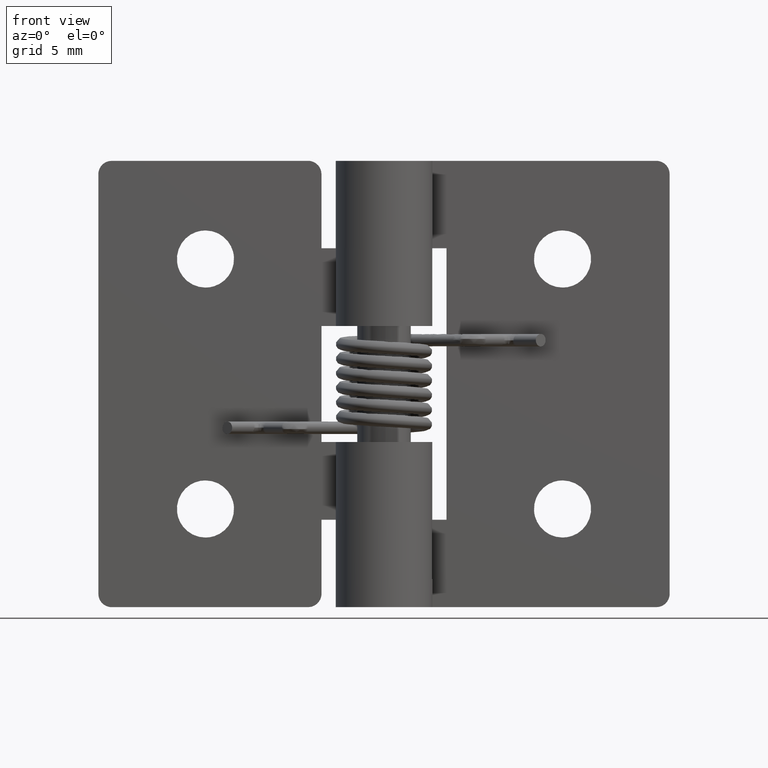
[diagram: clean part render]
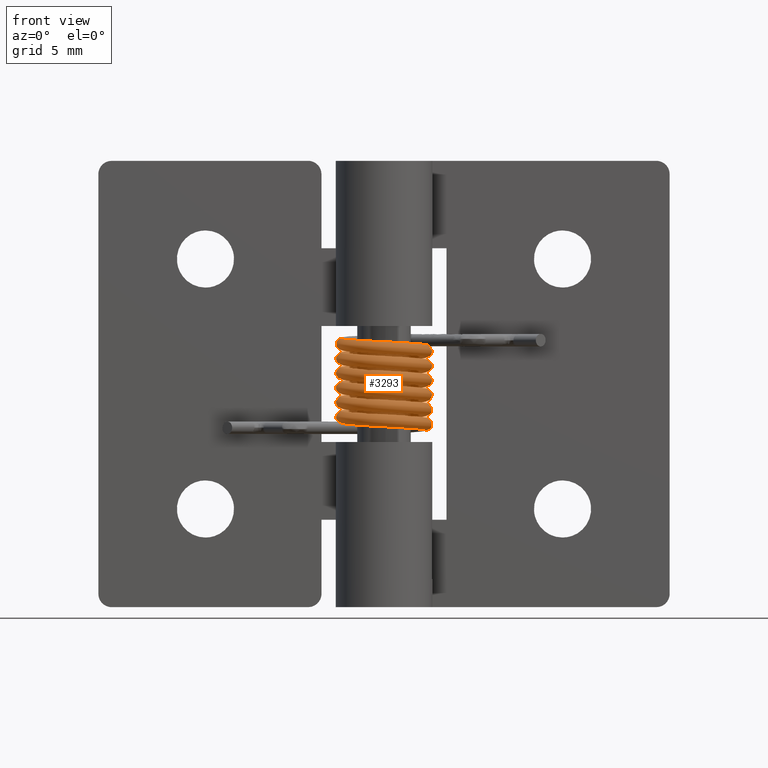
[diagram: same view with one face highlighted and labeled with its STEP entity id]
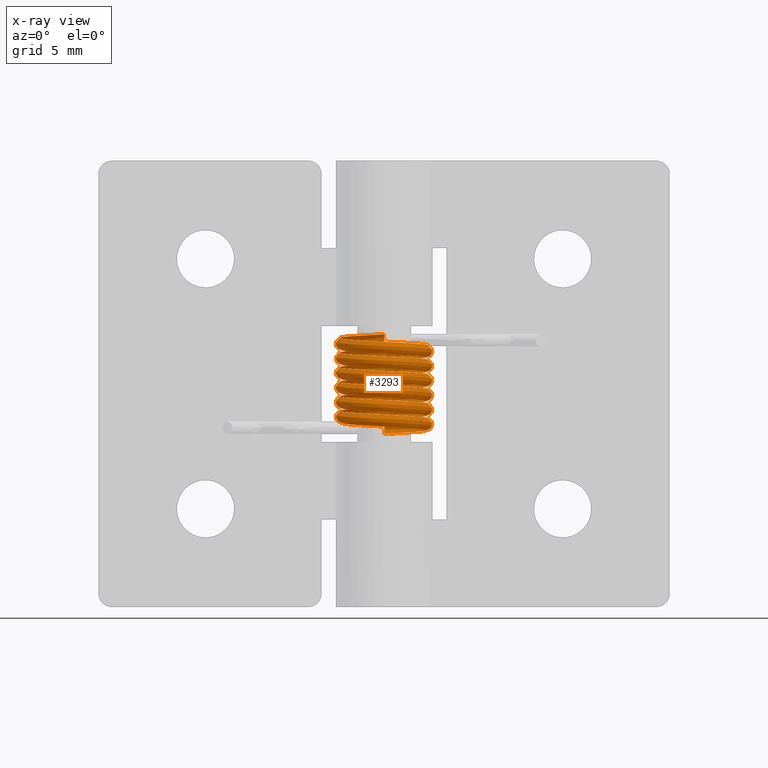
[diagram: x-ray of the same camera — body ghosted, the highlighted face saturated]
A machine part, front view. The second image highlights one B-rep face of the part: STEP entity #3293.
The next image is the same camera in x-ray: the body ghosted, the highlighted face saturated — about 1% of this face is hidden behind the body in this view.
In plain terms, the highlighted face is a freeform B-spline surface patch.
Its self-contained STEP definition (entity closure, byte-faithful):
#1487=CARTESIAN_POINT('',(-1.970367682489495,1.359863063062246,10.393085212388000));
#1488=VERTEX_POINT('',#1487);
#1489=CARTESIAN_POINT('',(-1.985122833147683,1.377318715017074,10.396908672878929));
#1490=VERTEX_POINT('',#1489);
#1491=CARTESIAN_POINT('',(-1.970367682489495,1.359863063062246,10.393085212388000));
#1492=CARTESIAN_POINT('',(-1.963348239737055,1.367277135674997,10.393402798360169));
#1493=CARTESIAN_POINT('',(-1.956680085018078,1.374969655654512,10.393799293501029));
#1494=CARTESIAN_POINT('',(-1.947460689617515,1.387131275624721,10.394528109855820));
#1495=CARTESIAN_POINT('',(-1.944502050165172,1.391296682520355,10.394793196482439));
#1496=CARTESIAN_POINT('',(-1.940545020227728,1.397858830963983,10.395261503232190));
#1497=CARTESIAN_POINT('',(-1.939305187835333,1.400087640762455,10.395427993986520));
#1498=CARTESIAN_POINT('',(-1.937764727973528,1.403597824224643,10.395720776133540));
#1499=CARTESIAN_POINT('',(-1.937302263628909,1.404797688179283,10.395825586772000));
#1500=CARTESIAN_POINT('',(-1.936663382024646,1.407266342285826,10.396065303210420));
#1501=CARTESIAN_POINT('',(-1.936408288937691,1.408606763100256,10.396202064289779));
#1502=CARTESIAN_POINT('',(-1.937278074307670,1.411017324048813,10.396555288600901));
#1503=CARTESIAN_POINT('',(-1.938742032108416,1.411502861051344,10.396732069099491));
#1504=CARTESIAN_POINT('',(-1.941297120177455,1.411301675564615,10.396922029340530));
#1505=CARTESIAN_POINT('',(-1.942537761150863,1.410892901733903,10.396979225435750));
#1506=CARTESIAN_POINT('',(-1.946091182353068,1.409489426156281,10.397118377128360));
#1507=CARTESIAN_POINT('',(-1.948335907568138,1.408221344252918,10.397165131426339));
#1508=CARTESIAN_POINT('',(-1.954828651702132,1.404205927307127,10.397265839915930));
#1509=CARTESIAN_POINT('',(-1.958874342492142,1.401159264096231,10.397273329182729));
#1510=CARTESIAN_POINT('',(-1.970691783766851,1.391601415118566,10.397230887546280));
#1511=CARTESIAN_POINT('',(-1.978115599069525,1.384599790098255,10.397106032870560));
#1512=CARTESIAN_POINT('',(-1.985122833147679,1.377318715017078,10.396908672878929));
#1513=B_SPLINE_CURVE_WITH_KNOTS('',3,(#1491,#1492,#1493,#1494,#1495,#1496,#1497,#1498,#1499,#1500,#1501,#1502,#1503,#1504,#1505,#1506,#1507,#1508,#1509,#1510,#1511,#1512),.UNSPECIFIED.,.F.,.U.,(4,2,2,2,2,2,2,2,2,2,4),(0.0,0.124999999999992,0.187499999999986,0.218749999999982,0.234374999999979,0.249999999999977,0.265624999999974,0.281249999999972,0.312499999999970,0.374999999999971,0.499999999999976),.UNSPECIFIED.);
#1514=EDGE_CURVE('',#1488,#1490,#1513,.T.);
#1516=CARTESIAN_POINT('',(-1.985122833147679,1.377318715017078,10.396908672878929));
#1517=CARTESIAN_POINT('',(-1.992130067225833,1.370037639935901,10.396711312887300));
#1518=CARTESIAN_POINT('',(-1.998757699668462,1.362441005555740,10.396442911318941));
#1519=CARTESIAN_POINT('',(-2.007835141516031,1.350329764363096,10.395831243829640));
#1520=CARTESIAN_POINT('',(-2.010724492754704,1.346179545992064,10.395594479459310));
#1521=CARTESIAN_POINT('',(-2.014582619153759,1.339559975677455,10.395117038019251));
#1522=CARTESIAN_POINT('',(-2.015792596637855,1.337287865737702,10.394937901510801));
#1523=CARTESIAN_POINT('',(-2.017757805182928,1.332570604614276,10.394493364157690));
#1524=CARTESIAN_POINT('',(-2.018852087741681,1.330000755380721,10.394251679656159));
#1525=CARTESIAN_POINT('',(-2.017918640351546,1.326270119504263,10.393580343793101));
#1526=CARTESIAN_POINT('',(-2.016670620901170,1.325450114987085,10.393302166637740));
#1527=CARTESIAN_POINT('',(-2.014099142727174,1.325393832779269,10.392977463224570));
#1528=CARTESIAN_POINT('',(-2.012846242431476,1.325765785288482,10.392880465392230));
#1529=CARTESIAN_POINT('',(-2.009214559614248,1.327111672427533,10.392642563589691));
#1530=CARTESIAN_POINT('',(-2.007000738850990,1.328377762896885,10.392568328865121));
#1531=CARTESIAN_POINT('',(-2.000508331394410,1.332441448627593,10.392409934064560));
#1532=CARTESIAN_POINT('',(-1.996445501450193,1.335590615673434,10.392411256041200));
#1533=CARTESIAN_POINT('',(-1.984697837341742,1.345361433593351,10.392527075016201));
#1534=CARTESIAN_POINT('',(-1.977387125241935,1.352448990449495,10.392767626415830));
#1535=CARTESIAN_POINT('',(-1.970367682489495,1.359863063062246,10.393085212388000));
#1536=B_SPLINE_CURVE_WITH_KNOTS('',3,(#1516,#1517,#1518,#1519,#1520,#1521,#1522,#1523,#1524,#1525,#1526,#1527,#1528,#1529,#1530,#1531,#1532,#1533,#1534,#1535),.UNSPECIFIED.,.F.,.U.,(4,2,2,2,2,2,2,2,2,4),(0.499999999999976,0.624999999999982,0.687499999999983,0.718749999999986,0.749999999999989,0.765624999999990,0.781249999999992,0.812499999999994,0.874999999999995,1.0),.UNSPECIFIED.);
#1537=EDGE_CURVE('',#1490,#1488,#1536,.T.);
#2353=CARTESIAN_POINT('',(-0.000001122712676,2.350000999998928,14.600013786230500));
#2354=VERTEX_POINT('',#2353);
#2368=CARTESIAN_POINT('',(-0.000004736729857,2.478666210628016,15.275572985189021));
#2369=VERTEX_POINT('',#2368);
#2370=CARTESIAN_POINT('',(-0.000004736729857,2.478666210628016,15.275572985189019));
#2371=CARTESIAN_POINT('',(-0.000005218164646,2.998859441384056,15.069933474487689));
#2372=CARTESIAN_POINT('',(-0.000002382235236,2.795455537658980,14.600021890446483));
#2373=CARTESIAN_POINT('',(-0.000001122712676,2.350000999998928,14.600013786230496));
#2381=(BOUNDED_CURVE()B_SPLINE_CURVE(3,(#2370,#2371,#2372,#2373),.UNSPECIFIED.,.F.,.U.)B_SPLINE_CURVE_WITH_KNOTS((4,4),(0.580000003094561,1.0),.UNSPECIFIED.)CURVE()GEOMETRIC_REPRESENTATION_ITEM()RATIONAL_B_SPLINE_CURVE((0.729734009559724,0.349697484760263,0.439117848623311,0.997995101148870))REPRESENTATION_ITEM(''));
#2382=EDGE_CURVE('',#2369,#2354,#2381,.T.);
#2493=CARTESIAN_POINT('',(-0.406225142898047,2.478091379250057,10.357693776471436));
#2494=CARTESIAN_POINT('',(-0.406427084881583,2.479323284013359,10.357207427902399));
#2495=CARTESIAN_POINT('',(-0.406630075822795,2.480561587723205,10.356718553067868));
#2496=CARTESIAN_POINT('',(-0.492215673166750,3.002658593962058,10.150597804575090));
#2497=CARTESIAN_POINT('',(-0.458830117652211,2.798997006887880,9.680734790876461));
#2498=CARTESIAN_POINT('',(-0.385555348336320,2.351999627890539,9.680734790876457));
#2499=CARTESIAN_POINT('',(-0.385395838851830,2.351026573697972,9.680734790876452));
#2500=CARTESIAN_POINT('',(-0.385237215181055,2.350058923226396,9.680734790876455));
#2501=CARTESIAN_POINT('',(-0.198777661819558,2.476526178995370,10.367574238761231));
#2502=CARTESIAN_POINT('',(-0.198876477848088,2.477757305668864,10.367087890192193));
#2503=CARTESIAN_POINT('',(-0.198975807161820,2.478994827247227,10.366599015357663));
#2504=CARTESIAN_POINT('',(-0.240855304831740,3.000762069065780,10.160478266864880));
#2505=CARTESIAN_POINT('',(-0.224518791004991,2.797229117751615,9.690615253166250));
#2506=CARTESIAN_POINT('',(-0.188663336044548,2.350514069106299,9.690615253166248));
#2507=CARTESIAN_POINT('',(-0.188585283459869,2.349541629509579,9.690615253166248));
#2508=CARTESIAN_POINT('',(-0.188507664329352,2.348574590220776,9.690615253166250));
#2509=CARTESIAN_POINT('',(1.447548930222307,2.464104573354442,10.445986701157921));
#2510=CARTESIAN_POINT('',(1.448268533396421,2.465329525019505,10.445500352588883));
#2511=CARTESIAN_POINT('',(1.448991874442472,2.466560839514274,10.445011477754351));
#2512=CARTESIAN_POINT('',(1.753968910068189,2.985711033724287,10.238890729261556));
#2513=CARTESIAN_POINT('',(1.635002307397618,2.783198950300638,9.769027715562926));
#2514=CARTESIAN_POINT('',(1.373893865958467,2.338724507151521,9.769027715562929));
#2515=CARTESIAN_POINT('',(1.373325467404930,2.337756945056716,9.769027715562929));
#2516=CARTESIAN_POINT('',(1.372760225373628,2.336794756183301,9.769027715562929));
#2517=CARTESIAN_POINT('',(2.152650276719914,1.221271356619078,10.514042256713489));
#2518=CARTESIAN_POINT('',(2.153720398730675,1.221878473053161,10.513555908144451));
#2519=CARTESIAN_POINT('',(2.154796079331471,1.222488743063498,10.513067033309918));
#2520=CARTESIAN_POINT('',(2.608327484333505,1.479792458509637,10.306946284817112));
#2521=CARTESIAN_POINT('',(2.431412227921481,1.379422445999223,9.837083271118484));
#2522=CARTESIAN_POINT('',(2.043117817292080,1.159129885351817,9.837083271118488));
#2523=CARTESIAN_POINT('',(2.042272551700009,1.158650337574132,9.837083271118495));
#2524=CARTESIAN_POINT('',(2.041431980172723,1.158173452898267,9.837083271118489));
#2525=CARTESIAN_POINT('',(2.857751623217518,-0.021561860116285,10.582097812269025));
#2526=CARTESIAN_POINT('',(2.859172264064927,-0.021572578913181,10.581611463699986));
#2527=CARTESIAN_POINT('',(2.860600284220470,-0.021583353387277,10.581122588865451));
#2528=CARTESIAN_POINT('',(3.462686058598825,-0.026126116705012,10.375001840372663));
#2529=CARTESIAN_POINT('',(3.227822148445346,-0.024354058302193,9.905138826674037));
#2530=CARTESIAN_POINT('',(2.712341768625695,-0.020464736447886,9.905138826674040));
#2531=CARTESIAN_POINT('',(2.711219635995085,-0.020456269908451,9.905138826674040));
#2532=CARTESIAN_POINT('',(2.710103734971817,-0.020447850386764,9.905138826674040));
#2533=CARTESIAN_POINT('',(2.133977158106363,-1.253614146793505,10.650153367824590));
#2534=CARTESIAN_POINT('',(2.135037997366717,-1.254237341422932,10.649667019255554));
#2535=CARTESIAN_POINT('',(2.136104346999233,-1.254863773144412,10.649178144421020));
#2536=CARTESIAN_POINT('',(2.585701603564729,-1.518981633567154,10.443057395928223));
#2537=CARTESIAN_POINT('',(2.410320994746538,-1.415953533452511,9.973194382229591));
#2538=CARTESIAN_POINT('',(2.025394835646460,-1.189826990023645,9.973194382229597));
#2539=CARTESIAN_POINT('',(2.024556902292620,-1.189334742436809,9.973194382229602));
#2540=CARTESIAN_POINT('',(2.023723622285002,-1.188845228478413,9.973194382229595));
#2541=CARTESIAN_POINT('',(1.410202692995209,-2.485666433470727,10.718208923380137));
#2542=CARTESIAN_POINT('',(1.410903730668505,-2.486902103932685,10.717722574811100));
#2543=CARTESIAN_POINT('',(1.411608409777996,-2.488144192901549,10.717233699976568));
#2544=CARTESIAN_POINT('',(1.708717148530635,-3.011837150429297,10.511112951483778));
#2545=CARTESIAN_POINT('',(1.592819841047727,-2.807553008602830,10.041249937785148));
#2546=CARTESIAN_POINT('',(1.338447902667224,-2.359189243599406,10.041249937785151));
#2547=CARTESIAN_POINT('',(1.337894168590153,-2.358213214965166,10.041249937785150));
#2548=CARTESIAN_POINT('',(1.337343509598187,-2.357242606570064,10.041249937785153));
#2549=CARTESIAN_POINT('',(-0.018673118613549,-2.474885503412587,10.786264478935690));
#2550=CARTESIAN_POINT('',(-0.018682401363959,-2.476115814476096,10.785778130366653));
#2551=CARTESIAN_POINT('',(-0.018691732332238,-2.477352516207914,10.785289255532120));
#2552=CARTESIAN_POINT('',(-0.022625880768777,-2.998774092076793,10.579168507039332));
#2553=CARTESIAN_POINT('',(-0.021091233174946,-2.795375979451736,10.109305493340699));
#2554=CARTESIAN_POINT('',(-0.017722981645622,-2.348956875375466,10.109305493340692));
#2555=CARTESIAN_POINT('',(-0.017715649407390,-2.347985080010944,10.109305493340706));
#2556=CARTESIAN_POINT('',(-0.017708357887721,-2.347018681376684,10.109305493340695));
#2557=CARTESIAN_POINT('',(-1.447548930222307,-2.464104573354442,10.854320034491248));
#2558=CARTESIAN_POINT('',(-1.448268533396421,-2.465329525019505,10.853833685922211));
#2559=CARTESIAN_POINT('',(-1.448991874442472,-2.466560839514274,10.853344811087679));
#2560=CARTESIAN_POINT('',(-1.753968910068189,-2.985711033724287,10.647224062594894));
#2561=CARTESIAN_POINT('',(-1.635002307397618,-2.783198950300638,10.177361048896261));
#2562=CARTESIAN_POINT('',(-1.373893865958467,-2.338724507151521,10.177361048896266));
#2563=CARTESIAN_POINT('',(-1.373325467404930,-2.337756945056716,10.177361048896266));
#2564=CARTESIAN_POINT('',(-1.372760225373628,-2.336794756183301,10.177361048896266));
#2565=CARTESIAN_POINT('',(-2.152650276719914,-1.221271356619079,10.922375590046808));
#2566=CARTESIAN_POINT('',(-2.153720398730675,-1.221878473053163,10.921889241477771));
#2567=CARTESIAN_POINT('',(-2.154796079331471,-1.222488743063499,10.921400366643239));
#2568=CARTESIAN_POINT('',(-2.608327484333505,-1.479792458509637,10.715279618150438));
#2569=CARTESIAN_POINT('',(-2.431412227921481,-1.379422445999224,10.245416604451814));
#2570=CARTESIAN_POINT('',(-2.043117817292080,-1.159129885351818,10.245416604451821));
#2571=CARTESIAN_POINT('',(-2.042272551700009,-1.158650337574134,10.245416604451830));
#2572=CARTESIAN_POINT('',(-2.041431980172723,-1.158173452898269,10.245416604451817));
#2573=CARTESIAN_POINT('',(-2.857751623217518,0.021561860116285,10.990431145602365));
#2574=CARTESIAN_POINT('',(-2.859172264064927,0.021572578913180,10.989944797033328));
#2575=CARTESIAN_POINT('',(-2.860600284220470,0.021583353387276,10.989455922198795));
#2576=CARTESIAN_POINT('',(-3.462686058598825,0.026126116705012,10.783335173706002));
#2577=CARTESIAN_POINT('',(-3.227822148445346,0.024354058302193,10.313472160007370));
#2578=CARTESIAN_POINT('',(-2.712341768625695,0.020464736447886,10.313472160007366));
#2579=CARTESIAN_POINT('',(-2.711219635995085,0.020456269908451,10.313472160007368));
#2580=CARTESIAN_POINT('',(-2.710103734971817,0.020447850386764,10.313472160007368));
#2581=CARTESIAN_POINT('',(-2.133977158106363,1.253614146793505,11.058486701157914));
#2582=CARTESIAN_POINT('',(-2.135037997366717,1.254237341422932,11.058000352588875));
#2583=CARTESIAN_POINT('',(-2.136104346999233,1.254863773144412,11.057511477754343));
#2584=CARTESIAN_POINT('',(-2.585701603564729,1.518981633567152,10.851390729261551));
#2585=CARTESIAN_POINT('',(-2.410320994746538,1.415953533452509,10.381527715562919));
#2586=CARTESIAN_POINT('',(-2.025394835646460,1.189826990023645,10.381527715562916));
#2587=CARTESIAN_POINT('',(-2.024556902292620,1.189334742436809,10.381527715562923));
#2588=CARTESIAN_POINT('',(-2.023723622285002,1.188845228478413,10.381527715562916));
#2589=CARTESIAN_POINT('',(-1.410202692995209,2.485666433470727,11.126542256713476));
#2590=CARTESIAN_POINT('',(-1.410903730668505,2.486902103932685,11.126055908144439));
#2591=CARTESIAN_POINT('',(-1.411608409777996,2.488144192901549,11.125567033309904));
#2592=CARTESIAN_POINT('',(-1.708717148530635,3.011837150429297,10.919446284817116));
#2593=CARTESIAN_POINT('',(-1.592819841047727,2.807553008602830,10.449583271118481));
#2594=CARTESIAN_POINT('',(-1.338447902667224,2.359189243599406,10.449583271118483));
#2595=CARTESIAN_POINT('',(-1.337894168590153,2.358213214965166,10.449583271118481));
#2596=CARTESIAN_POINT('',(-1.337343509598187,2.357242606570064,10.449583271118483));
#2597=CARTESIAN_POINT('',(0.018673118613550,2.474885503412587,11.194597812269032));
#2598=CARTESIAN_POINT('',(0.018682401363959,2.476115814476096,11.194111463699992));
#2599=CARTESIAN_POINT('',(0.018691732332239,2.477352516207914,11.193622588865461));
#2600=CARTESIAN_POINT('',(0.022625880768778,2.998774092076793,10.987501840372664));
#2601=CARTESIAN_POINT('',(0.021091233174947,2.795375979451736,10.517638826674043));
#2602=CARTESIAN_POINT('',(0.017722981645623,2.348956875375466,10.517638826674034));
#2603=CARTESIAN_POINT('',(0.017715649407390,2.347985080010944,10.517638826674048));
#2604=CARTESIAN_POINT('',(0.017708357887721,2.347018681376684,10.517638826674039));
#2605=CARTESIAN_POINT('',(1.447548930222307,2.464104573354442,11.262653367824585));
#2606=CARTESIAN_POINT('',(1.448268533396421,2.465329525019505,11.262167019255548));
#2607=CARTESIAN_POINT('',(1.448991874442472,2.466560839514274,11.261678144421015));
#2608=CARTESIAN_POINT('',(1.753968910068189,2.985711033724287,11.055557395928226));
#2609=CARTESIAN_POINT('',(1.635002307397618,2.783198950300638,10.585694382229597));
#2610=CARTESIAN_POINT('',(1.373893865958467,2.338724507151521,10.585694382229596));
#2611=CARTESIAN_POINT('',(1.373325467404930,2.337756945056716,10.585694382229594));
#2612=CARTESIAN_POINT('',(1.372760225373628,2.336794756183301,10.585694382229596));
#2613=CARTESIAN_POINT('',(2.152650276719914,1.221271356619078,11.330708923380133));
#2614=CARTESIAN_POINT('',(2.153720398730675,1.221878473053161,11.330222574811096));
#2615=CARTESIAN_POINT('',(2.154796079331471,1.222488743063498,11.329733699976561));
#2616=CARTESIAN_POINT('',(2.608327484333505,1.479792458509637,11.123612951483775));
#2617=CARTESIAN_POINT('',(2.431412227921481,1.379422445999223,10.653749937785149));
#2618=CARTESIAN_POINT('',(2.043117817292080,1.159129885351817,10.653749937785140));
#2619=CARTESIAN_POINT('',(2.042272551700009,1.158650337574132,10.653749937785141));
#2620=CARTESIAN_POINT('',(2.041431980172723,1.158173452898267,10.653749937785138));
#2621=CARTESIAN_POINT('',(2.857751623217518,-0.021561860116285,11.398764478935702));
#2622=CARTESIAN_POINT('',(2.859172264064927,-0.021572578913181,11.398278130366666));
#2623=CARTESIAN_POINT('',(2.860600284220470,-0.021583353387277,11.397789255532132));
#2624=CARTESIAN_POINT('',(3.462686058598825,-0.026126116705012,11.191668507039340));
#2625=CARTESIAN_POINT('',(3.227822148445346,-0.024354058302193,10.721805493340710));
#2626=CARTESIAN_POINT('',(2.712341768625695,-0.020464736447886,10.721805493340705));
#2627=CARTESIAN_POINT('',(2.711219635995085,-0.020456269908451,10.721805493340705));
#2628=CARTESIAN_POINT('',(2.710103734971817,-0.020447850386764,10.721805493340705));
#2629=CARTESIAN_POINT('',(2.133977158106363,-1.253614146793505,11.466820034491251));
#2630=CARTESIAN_POINT('',(2.135037997366717,-1.254237341422932,11.466333685922212));
#2631=CARTESIAN_POINT('',(2.136104346999233,-1.254863773144412,11.465844811087683));
#2632=CARTESIAN_POINT('',(2.585701603564729,-1.518981633567154,11.259724062594888));
#2633=CARTESIAN_POINT('',(2.410320994746538,-1.415953533452511,10.789861048896263));
#2634=CARTESIAN_POINT('',(2.025394835646460,-1.189826990023645,10.789861048896258));
#2635=CARTESIAN_POINT('',(2.024556902292620,-1.189334742436809,10.789861048896263));
#2636=CARTESIAN_POINT('',(2.023723622285002,-1.188845228478413,10.789861048896261));
#2637=CARTESIAN_POINT('',(1.410202692995209,-2.485666433470727,11.534875590046815));
#2638=CARTESIAN_POINT('',(1.410903730668505,-2.486902103932685,11.534389241477776));
#2639=CARTESIAN_POINT('',(1.411608409777996,-2.488144192901549,11.533900366643243));
#2640=CARTESIAN_POINT('',(1.708717148530635,-3.011837150429297,11.327779618150441));
#2641=CARTESIAN_POINT('',(1.592819841047727,-2.807553008602830,10.857916604451821));
#2642=CARTESIAN_POINT('',(1.338447902667224,-2.359189243599406,10.857916604451820));
#2643=CARTESIAN_POINT('',(1.337894168590153,-2.358213214965166,10.857916604451820));
#2644=CARTESIAN_POINT('',(1.337343509598187,-2.357242606570064,10.857916604451820));
#2645=CARTESIAN_POINT('',(-0.018673118613549,-2.474885503412587,11.602931145602351));
#2646=CARTESIAN_POINT('',(-0.018682401363959,-2.476115814476096,11.602444797033312));
#2647=CARTESIAN_POINT('',(-0.018691732332238,-2.477352516207914,11.601955922198780));
#2648=CARTESIAN_POINT('',(-0.022625880768777,-2.998774092076793,11.395835173705995));
#2649=CARTESIAN_POINT('',(-0.021091233174946,-2.795375979451736,10.925972160007374));
#2650=CARTESIAN_POINT('',(-0.017722981645622,-2.348956875375466,10.925972160007374));
#2651=CARTESIAN_POINT('',(-0.017715649407390,-2.347985080010944,10.925972160007388));
#2652=CARTESIAN_POINT('',(-0.017708357887721,-2.347018681376684,10.925972160007381));
#2653=CARTESIAN_POINT('',(-1.447548930222307,-2.464104573354442,11.670986701157917));
#2654=CARTESIAN_POINT('',(-1.448268533396421,-2.465329525019505,11.670500352588878));
#2655=CARTESIAN_POINT('',(-1.448991874442472,-2.466560839514274,11.670011477754345));
#2656=CARTESIAN_POINT('',(-1.753968910068189,-2.985711033724287,11.463890729261557));
#2657=CARTESIAN_POINT('',(-1.635002307397618,-2.783198950300638,10.994027715562934));
#2658=CARTESIAN_POINT('',(-1.373893865958467,-2.338724507151521,10.994027715562932));
#2659=CARTESIAN_POINT('',(-1.373325467404930,-2.337756945056716,10.994027715562931));
#2660=CARTESIAN_POINT('',(-1.372760225373628,-2.336794756183301,10.994027715562932));
#2661=CARTESIAN_POINT('',(-2.152650276719914,-1.221271356619079,11.739042256713486));
#2662=CARTESIAN_POINT('',(-2.153720398730675,-1.221878473053163,11.738555908144447));
#2663=CARTESIAN_POINT('',(-2.154796079331471,-1.222488743063499,11.738067033309916));
#2664=CARTESIAN_POINT('',(-2.608327484333505,-1.479792458509637,11.531946284817108));
#2665=CARTESIAN_POINT('',(-2.431412227921481,-1.379422445999224,11.062083271118489));
#2666=CARTESIAN_POINT('',(-2.043117817292080,-1.159129885351818,11.062083271118501));
#2667=CARTESIAN_POINT('',(-2.042272551700009,-1.158650337574134,11.062083271118501));
#2668=CARTESIAN_POINT('',(-2.041431980172723,-1.158173452898269,11.062083271118501));
#2669=CARTESIAN_POINT('',(-2.857751623217518,0.021561860116285,11.807097812269017));
#2670=CARTESIAN_POINT('',(-2.859172264064927,0.021572578913180,11.806611463699980));
#2671=CARTESIAN_POINT('',(-2.860600284220470,0.021583353387276,11.806122588865447));
#2672=CARTESIAN_POINT('',(-3.462686058598825,0.026126116705012,11.600001840372668));
#2673=CARTESIAN_POINT('',(-3.227822148445346,0.024354058302193,11.130138826674047));
#2674=CARTESIAN_POINT('',(-2.712341768625695,0.020464736447886,11.130138826674044));
#2675=CARTESIAN_POINT('',(-2.711219635995085,0.020456269908451,11.130138826674044));
#2676=CARTESIAN_POINT('',(-2.710103734971817,0.020447850386764,11.130138826674044));
#2677=CARTESIAN_POINT('',(-2.133977158106363,1.253614146793505,11.875153367824590));
#2678=CARTESIAN_POINT('',(-2.135037997366717,1.254237341422932,11.874667019255552));
#2679=CARTESIAN_POINT('',(-2.136104346999233,1.254863773144412,11.874178144421020));
#2680=CARTESIAN_POINT('',(-2.585701603564729,1.518981633567152,11.668057395928226));
#2681=CARTESIAN_POINT('',(-2.410320994746538,1.415953533452509,11.198194382229595));
#2682=CARTESIAN_POINT('',(-2.025394835646460,1.189826990023645,11.198194382229598));
#2683=CARTESIAN_POINT('',(-2.024556902292620,1.189334742436809,11.198194382229605));
#2684=CARTESIAN_POINT('',(-2.023723622285002,1.188845228478413,11.198194382229604));
#2685=CARTESIAN_POINT('',(-1.410202692995209,2.485666433470727,11.943208923380139));
#2686=CARTESIAN_POINT('',(-1.410903730668505,2.486902103932685,11.942722574811100));
#2687=CARTESIAN_POINT('',(-1.411608409777996,2.488144192901549,11.942233699976567));
#2688=CARTESIAN_POINT('',(-1.708717148530635,3.011837150429297,11.736112951483777));
#2689=CARTESIAN_POINT('',(-1.592819841047727,2.807553008602830,11.266249937785144));
#2690=CARTESIAN_POINT('',(-1.338447902667224,2.359189243599406,11.266249937785144));
#2691=CARTESIAN_POINT('',(-1.337894168590153,2.358213214965166,11.266249937785142));
#2692=CARTESIAN_POINT('',(-1.337343509598187,2.357242606570064,11.266249937785146));
#2693=CARTESIAN_POINT('',(0.018673118613550,2.474885503412587,12.011264478935695));
#2694=CARTESIAN_POINT('',(0.018682401363959,2.476115814476096,12.010778130366656));
#2695=CARTESIAN_POINT('',(0.018691732332239,2.477352516207914,12.010289255532125));
#2696=CARTESIAN_POINT('',(0.022625880768778,2.998774092076793,11.804168507039336));
#2697=CARTESIAN_POINT('',(0.021091233174947,2.795375979451736,11.334305493340702));
#2698=CARTESIAN_POINT('',(0.017722981645623,2.348956875375466,11.334305493340695));
#2699=CARTESIAN_POINT('',(0.017715649407390,2.347985080010944,11.334305493340700));
#2700=CARTESIAN_POINT('',(0.017708357887721,2.347018681376684,11.334305493340693));
#2701=CARTESIAN_POINT('',(1.447548930222307,2.464104573354442,12.079320034491243));
#2702=CARTESIAN_POINT('',(1.448268533396421,2.465329525019505,12.078833685922206));
#2703=CARTESIAN_POINT('',(1.448991874442472,2.466560839514274,12.078344811087671));
#2704=CARTESIAN_POINT('',(1.753968910068189,2.985711033724287,11.872224062594885));
#2705=CARTESIAN_POINT('',(1.635002307397618,2.783198950300638,11.402361048896257));
#2706=CARTESIAN_POINT('',(1.373893865958467,2.338724507151521,11.402361048896255));
#2707=CARTESIAN_POINT('',(1.373325467404930,2.337756945056716,11.402361048896255));
#2708=CARTESIAN_POINT('',(1.372760225373628,2.336794756183301,11.402361048896255));
#2709=CARTESIAN_POINT('',(2.152650276719914,1.221271356619078,12.147375590046810));
#2710=CARTESIAN_POINT('',(2.153720398730675,1.221878473053161,12.146889241477773));
#2711=CARTESIAN_POINT('',(2.154796079331471,1.222488743063498,12.146400366643240));
#2712=CARTESIAN_POINT('',(2.608327484333505,1.479792458509637,11.940279618150445));
#2713=CARTESIAN_POINT('',(2.431412227921481,1.379422445999223,11.470416604451819));
#2714=CARTESIAN_POINT('',(2.043117817292080,1.159129885351817,11.470416604451813));
#2715=CARTESIAN_POINT('',(2.042272551700009,1.158650337574132,11.470416604451824));
#2716=CARTESIAN_POINT('',(2.041431980172723,1.158173452898267,11.470416604451815));
#2717=CARTESIAN_POINT('',(2.857751623217518,-0.021561860116285,12.215431145602368));
#2718=CARTESIAN_POINT('',(2.859172264064927,-0.021572578913181,12.214944797033331));
#2719=CARTESIAN_POINT('',(2.860600284220470,-0.021583353387277,12.214455922198798));
#2720=CARTESIAN_POINT('',(3.462686058598825,-0.026126116705012,12.008335173706000));
#2721=CARTESIAN_POINT('',(3.227822148445346,-0.024354058302193,11.538472160007371));
#2722=CARTESIAN_POINT('',(2.712341768625695,-0.020464736447886,11.538472160007375));
#2723=CARTESIAN_POINT('',(2.711219635995085,-0.020456269908451,11.538472160007366));
#2724=CARTESIAN_POINT('',(2.710103734971817,-0.020447850386764,11.538472160007373));
#2725=CARTESIAN_POINT('',(2.133977158106363,-1.253614146793505,12.283486701157912));
#2726=CARTESIAN_POINT('',(2.135037997366717,-1.254237341422932,12.283000352588873));
#2727=CARTESIAN_POINT('',(2.136104346999233,-1.254863773144412,12.282511477754340));
#2728=CARTESIAN_POINT('',(2.585701603564729,-1.518981633567154,12.076390729261552));
#2729=CARTESIAN_POINT('',(2.410320994746538,-1.415953533452511,11.606527715562923));
#2730=CARTESIAN_POINT('',(2.025394835646460,-1.189826990023645,11.606527715562919));
#2731=CARTESIAN_POINT('',(2.024556902292620,-1.189334742436809,11.606527715562919));
#2732=CARTESIAN_POINT('',(2.023723622285002,-1.188845228478413,11.606527715562915));
#2733=CARTESIAN_POINT('',(1.410202692995209,-2.485666433470727,12.351542256713469));
#2734=CARTESIAN_POINT('',(1.410903730668505,-2.486902103932685,12.351055908144431));
#2735=CARTESIAN_POINT('',(1.411608409777996,-2.488144192901549,12.350567033309899));
#2736=CARTESIAN_POINT('',(1.708717148530635,-3.011837150429297,12.144446284817114));
#2737=CARTESIAN_POINT('',(1.592819841047727,-2.807553008602830,11.674583271118484));
#2738=CARTESIAN_POINT('',(1.338447902667224,-2.359189243599406,11.674583271118482));
#2739=CARTESIAN_POINT('',(1.337894168590153,-2.358213214965166,11.674583271118481));
#2740=CARTESIAN_POINT('',(1.337343509598187,-2.357242606570064,11.674583271118490));
#2741=CARTESIAN_POINT('',(-0.018673118613549,-2.474885503412587,12.419597812269030));
#2742=CARTESIAN_POINT('',(-0.018682401363959,-2.476115814476096,12.419111463699991));
#2743=CARTESIAN_POINT('',(-0.018691732332238,-2.477352516207914,12.418622588865459));
#2744=CARTESIAN_POINT('',(-0.022625880768777,-2.998774092076793,12.212501840372667));
#2745=CARTESIAN_POINT('',(-0.021091233174946,-2.795375979451736,11.742638826674035));
#2746=CARTESIAN_POINT('',(-0.017722981645622,-2.348956875375466,11.742638826674037));
#2747=CARTESIAN_POINT('',(-0.017715649407390,-2.347985080010944,11.742638826674042));
#2748=CARTESIAN_POINT('',(-0.017708357887721,-2.347018681376684,11.742638826674037));
#2749=CARTESIAN_POINT('',(-1.447548930222307,-2.464104573354442,12.487653367824592));
#2750=CARTESIAN_POINT('',(-1.448268533396421,-2.465329525019505,12.487167019255555));
#2751=CARTESIAN_POINT('',(-1.448991874442472,-2.466560839514274,12.486678144421022));
#2752=CARTESIAN_POINT('',(-1.753968910068189,-2.985711033724287,12.280557395928229));
#2753=CARTESIAN_POINT('',(-1.635002307397618,-2.783198950300638,11.810694382229601));
#2754=CARTESIAN_POINT('',(-1.373893865958467,-2.338724507151521,11.810694382229611));
#2755=CARTESIAN_POINT('',(-1.373325467404930,-2.337756945056716,11.810694382229602));
#2756=CARTESIAN_POINT('',(-1.372760225373628,-2.336794756183301,11.810694382229608));
#2757=CARTESIAN_POINT('',(-2.152650276719914,-1.221271356619079,12.555708923380131));
#2758=CARTESIAN_POINT('',(-2.153720398730675,-1.221878473053163,12.555222574811093));
#2759=CARTESIAN_POINT('',(-2.154796079331471,-1.222488743063499,12.554733699976561));
#2760=CARTESIAN_POINT('',(-2.608327484333505,-1.479792458509637,12.348612951483775));
#2761=CARTESIAN_POINT('',(-2.431412227921481,-1.379422445999224,11.878749937785145));
#2762=CARTESIAN_POINT('',(-2.043117817292080,-1.159129885351818,11.878749937785143));
#2763=CARTESIAN_POINT('',(-2.042272551700009,-1.158650337574134,11.878749937785146));
#2764=CARTESIAN_POINT('',(-2.041431980172723,-1.158173452898269,11.878749937785138));
#2765=CARTESIAN_POINT('',(-2.857751623217518,0.021561860116285,12.623764478935689));
#2766=CARTESIAN_POINT('',(-2.859172264064927,0.021572578913180,12.623278130366652));
#2767=CARTESIAN_POINT('',(-2.860600284220470,0.021583353387276,12.622789255532119));
#2768=CARTESIAN_POINT('',(-3.462686058598825,0.026126116705012,12.416668507039338));
#2769=CARTESIAN_POINT('',(-3.227822148445346,0.024354058302193,11.946805493340706));
#2770=CARTESIAN_POINT('',(-2.712341768625695,0.020464736447886,11.946805493340706));
#2771=CARTESIAN_POINT('',(-2.711219635995085,0.020456269908451,11.946805493340705));
#2772=CARTESIAN_POINT('',(-2.710103734971817,0.020447850386764,11.946805493340703));
#2773=CARTESIAN_POINT('',(-2.133977158106363,1.253614146793505,12.691820034491254));
#2774=CARTESIAN_POINT('',(-2.135037997366717,1.254237341422932,12.691333685922215));
#2775=CARTESIAN_POINT('',(-2.136104346999233,1.254863773144412,12.690844811087684));
#2776=CARTESIAN_POINT('',(-2.585701603564729,1.518981633567152,12.484724062594887));
#2777=CARTESIAN_POINT('',(-2.410320994746538,1.415953533452509,12.014861048896254));
#2778=CARTESIAN_POINT('',(-2.025394835646460,1.189826990023645,12.014861048896261));
#2779=CARTESIAN_POINT('',(-2.024556902292620,1.189334742436809,12.014861048896261));
#2780=CARTESIAN_POINT('',(-2.023723622285002,1.188845228478413,12.014861048896258));
#2781=CARTESIAN_POINT('',(-1.410202692995209,2.485666433470727,12.759875590046818));
#2782=CARTESIAN_POINT('',(-1.410903730668505,2.486902103932685,12.759389241477779));
#2783=CARTESIAN_POINT('',(-1.411608409777996,2.488144192901549,12.758900366643246));
#2784=CARTESIAN_POINT('',(-1.708717148530635,3.011837150429297,12.552779618150453));
#2785=CARTESIAN_POINT('',(-1.592819841047727,2.807553008602830,12.082916604451823));
#2786=CARTESIAN_POINT('',(-1.338447902667224,2.359189243599406,12.082916604451837));
#2787=CARTESIAN_POINT('',(-1.337894168590153,2.358213214965166,12.082916604451828));
#2788=CARTESIAN_POINT('',(-1.337343509598187,2.357242606570064,12.082916604451832));
#2789=CARTESIAN_POINT('',(0.018673118613550,2.474885503412587,12.827931145602372));
#2790=CARTESIAN_POINT('',(0.018682401363959,2.476115814476096,12.827444797033333));
#2791=CARTESIAN_POINT('',(0.018691732332239,2.477352516207914,12.826955922198801));
#2792=CARTESIAN_POINT('',(0.022625880768778,2.998774092076793,12.620835173706000));
#2793=CARTESIAN_POINT('',(0.021091233174947,2.795375979451736,12.150972160007377));
#2794=CARTESIAN_POINT('',(0.017722981645623,2.348956875375466,12.150972160007377));
#2795=CARTESIAN_POINT('',(0.017715649407390,2.347985080010944,12.150972160007385));
#2796=CARTESIAN_POINT('',(0.017708357887721,2.347018681376684,12.150972160007379));
#2797=CARTESIAN_POINT('',(1.447548930222307,2.464104573354442,12.895986701157922));
#2798=CARTESIAN_POINT('',(1.448268533396421,2.465329525019505,12.895500352588883));
#2799=CARTESIAN_POINT('',(1.448991874442472,2.466560839514274,12.895011477754350));
#2800=CARTESIAN_POINT('',(1.753968910068189,2.985711033724287,12.688890729261560));
#2801=CARTESIAN_POINT('',(1.635002307397618,2.783198950300638,12.219027715562925));
#2802=CARTESIAN_POINT('',(1.373893865958467,2.338724507151521,12.219027715562909));
#2803=CARTESIAN_POINT('',(1.373325467404930,2.337756945056716,12.219027715562905));
#2804=CARTESIAN_POINT('',(1.372760225373628,2.336794756183301,12.219027715562916));
#2805=CARTESIAN_POINT('',(2.152650276719914,1.221271356619078,12.964042256713487));
#2806=CARTESIAN_POINT('',(2.153720398730675,1.221878473053161,12.963555908144448));
#2807=CARTESIAN_POINT('',(2.154796079331471,1.222488743063498,12.963067033309915));
#2808=CARTESIAN_POINT('',(2.608327484333505,1.479792458509637,12.756946284817108));
#2809=CARTESIAN_POINT('',(2.431412227921481,1.379422445999223,12.287083271118492));
#2810=CARTESIAN_POINT('',(2.043117817292080,1.159129885351817,12.287083271118494));
#2811=CARTESIAN_POINT('',(2.042272551700009,1.158650337574132,12.287083271118499));
#2812=CARTESIAN_POINT('',(2.041431980172723,1.158173452898267,12.287083271118499));
#2813=CARTESIAN_POINT('',(2.857751623217518,-0.021561860116285,13.032097812269036));
#2814=CARTESIAN_POINT('',(2.859172264064927,-0.021572578913181,13.031611463699996));
#2815=CARTESIAN_POINT('',(2.860600284220470,-0.021583353387277,13.031122588865463));
#2816=CARTESIAN_POINT('',(3.462686058598825,-0.026126116705012,12.825001840372662));
#2817=CARTESIAN_POINT('',(3.227822148445346,-0.024354058302193,12.355138826674041));
#2818=CARTESIAN_POINT('',(2.712341768625695,-0.020464736447886,12.355138826674040));
#2819=CARTESIAN_POINT('',(2.711219635995085,-0.020456269908451,12.355138826674040));
#2820=CARTESIAN_POINT('',(2.710103734971817,-0.020447850386764,12.355138826674034));
#2821=CARTESIAN_POINT('',(2.133977158106363,-1.253614146793505,13.100153367824589));
#2822=CARTESIAN_POINT('',(2.135037997366717,-1.254237341422932,13.099667019255550));
#2823=CARTESIAN_POINT('',(2.136104346999233,-1.254863773144412,13.099178144421018));
#2824=CARTESIAN_POINT('',(2.585701603564729,-1.518981633567154,12.893057395928224));
#2825=CARTESIAN_POINT('',(2.410320994746538,-1.415953533452511,12.423194382229600));
#2826=CARTESIAN_POINT('',(2.025394835646460,-1.189826990023645,12.423194382229601));
#2827=CARTESIAN_POINT('',(2.024556902292620,-1.189334742436809,12.423194382229603));
#2828=CARTESIAN_POINT('',(2.023723622285002,-1.188845228478413,12.423194382229601));
#2829=CARTESIAN_POINT('',(1.410202692995209,-2.485666433470727,13.168208923380144));
#2830=CARTESIAN_POINT('',(1.410903730668505,-2.486902103932685,13.167722574811107));
#2831=CARTESIAN_POINT('',(1.411608409777996,-2.488144192901549,13.167233699976574));
#2832=CARTESIAN_POINT('',(1.708717148530635,-3.011837150429297,12.961112951483779));
#2833=CARTESIAN_POINT('',(1.592819841047727,-2.807553008602830,12.491249937785149));
#2834=CARTESIAN_POINT('',(1.338447902667224,-2.359189243599406,12.491249937785133));
#2835=CARTESIAN_POINT('',(1.337894168590153,-2.358213214965166,12.491249937785142));
#2836=CARTESIAN_POINT('',(1.337343509598187,-2.357242606570064,12.491249937785140));
#2837=CARTESIAN_POINT('',(-0.018673118613549,-2.474885503412587,13.236264478935691));
#2838=CARTESIAN_POINT('',(-0.018682401363959,-2.476115814476096,13.235778130366651));
#2839=CARTESIAN_POINT('',(-0.018691732332238,-2.477352516207914,13.235289255532120));
#2840=CARTESIAN_POINT('',(-0.022625880768777,-2.998774092076793,13.029168507039326));
#2841=CARTESIAN_POINT('',(-0.021091233174946,-2.795375979451736,12.559305493340705));
#2842=CARTESIAN_POINT('',(-0.017722981645622,-2.348956875375466,12.559305493340696));
#2843=CARTESIAN_POINT('',(-0.017715649407390,-2.347985080010944,12.559305493340707));
#2844=CARTESIAN_POINT('',(-0.017708357887721,-2.347018681376684,12.559305493340702));
#2845=CARTESIAN_POINT('',(-1.447548930222307,-2.464104573354442,13.304320034491266));
#2846=CARTESIAN_POINT('',(-1.448268533396421,-2.465329525019505,13.303833685922227));
#2847=CARTESIAN_POINT('',(-1.448991874442472,-2.466560839514274,13.303344811087694));
#2848=CARTESIAN_POINT('',(-1.753968910068189,-2.985711033724287,13.097224062594886));
#2849=CARTESIAN_POINT('',(-1.635002307397618,-2.783198950300638,12.627361048896253));
#2850=CARTESIAN_POINT('',(-1.373893865958467,-2.338724507151521,12.627361048896264));
#2851=CARTESIAN_POINT('',(-1.373325467404930,-2.337756945056716,12.627361048896265));
#2852=CARTESIAN_POINT('',(-1.372760225373628,-2.336794756183301,12.627361048896258));
#2853=CARTESIAN_POINT('',(-2.152650276719914,-1.221271356619079,13.372375590046810));
#2854=CARTESIAN_POINT('',(-2.153720398730675,-1.221878473053163,13.371889241477774));
#2855=CARTESIAN_POINT('',(-2.154796079331471,-1.222488743063499,13.371400366643241));
#2856=CARTESIAN_POINT('',(-2.608327484333505,-1.479792458509637,13.165279618150443));
#2857=CARTESIAN_POINT('',(-2.431412227921481,-1.379422445999224,12.695416604451822));
#2858=CARTESIAN_POINT('',(-2.043117817292080,-1.159129885351818,12.695416604451815));
#2859=CARTESIAN_POINT('',(-2.042272551700009,-1.158650337574134,12.695416604451831));
#2860=CARTESIAN_POINT('',(-2.041431980172723,-1.158173452898269,12.695416604451824));
#2861=CARTESIAN_POINT('',(-2.857751623217518,0.021561860116285,13.440431145602371));
#2862=CARTESIAN_POINT('',(-2.859172264064927,0.021572578913180,13.439944797033334));
#2863=CARTESIAN_POINT('',(-2.860600284220470,0.021583353387276,13.439455922198800));
#2864=CARTESIAN_POINT('',(-3.462686058598825,0.026126116705012,13.233335173705997));
#2865=CARTESIAN_POINT('',(-3.227822148445346,0.024354058302193,12.763472160007362));
#2866=CARTESIAN_POINT('',(-2.712341768625695,0.020464736447886,12.763472160007359));
#2867=CARTESIAN_POINT('',(-2.711219635995085,0.020456269908451,12.763472160007366));
#2868=CARTESIAN_POINT('',(-2.710103734971817,0.020447850386764,12.763472160007364));
#2869=CARTESIAN_POINT('',(-2.133977158106363,1.253614146793505,13.508486701157915));
#2870=CARTESIAN_POINT('',(-2.135037997366717,1.254237341422932,13.508000352588876));
#2871=CARTESIAN_POINT('',(-2.136104346999233,1.254863773144412,13.507511477754344));
#2872=CARTESIAN_POINT('',(-2.585701603564729,1.518981633567152,13.301390729261557));
#2873=CARTESIAN_POINT('',(-2.410320994746538,1.415953533452509,12.831527715562924));
#2874=CARTESIAN_POINT('',(-2.025394835646460,1.189826990023645,12.831527715562920));
#2875=CARTESIAN_POINT('',(-2.024556902292620,1.189334742436809,12.831527715562924));
#2876=CARTESIAN_POINT('',(-2.023723622285002,1.188845228478413,12.831527715562924));
#2877=CARTESIAN_POINT('',(-1.410202692995209,2.485666433470727,13.576542256713486));
#2878=CARTESIAN_POINT('',(-1.410903730668505,2.486902103932685,13.576055908144447));
#2879=CARTESIAN_POINT('',(-1.411608409777996,2.488144192901549,13.575567033309916));
#2880=CARTESIAN_POINT('',(-1.708717148530635,3.011837150429297,13.369446284817110));
#2881=CARTESIAN_POINT('',(-1.592819841047727,2.807553008602830,12.899583271118480));
#2882=CARTESIAN_POINT('',(-1.338447902667224,2.359189243599406,12.899583271118487));
#2883=CARTESIAN_POINT('',(-1.337894168590153,2.358213214965166,12.899583271118479));
#2884=CARTESIAN_POINT('',(-1.337343509598187,2.357242606570064,12.899583271118480));
#2885=CARTESIAN_POINT('',(0.018673118613550,2.474885503412587,13.644597812269033));
#2886=CARTESIAN_POINT('',(0.018682401363959,2.476115814476096,13.644111463699989));
#2887=CARTESIAN_POINT('',(0.018691732332239,2.477352516207914,13.643622588865467));
#2888=CARTESIAN_POINT('',(0.022625880768778,2.998774092076793,13.437501840372670));
#2889=CARTESIAN_POINT('',(0.021091233174947,2.795375979451736,12.967638826674039));
#2890=CARTESIAN_POINT('',(0.017722981645623,2.348956875375466,12.967638826674039));
#2891=CARTESIAN_POINT('',(0.017715649407390,2.347985080010944,12.967638826674049));
#2892=CARTESIAN_POINT('',(0.017708357887721,2.347018681376684,12.967638826674044));
#2893=CARTESIAN_POINT('',(1.447548930222307,2.464104573354442,13.712653367824576));
#2894=CARTESIAN_POINT('',(1.448268533396421,2.465329525019505,13.712167019255538));
#2895=CARTESIAN_POINT('',(1.448991874442472,2.466560839514274,13.711678144421004));
#2896=CARTESIAN_POINT('',(1.753968910068189,2.985711033724287,13.505557395928221));
#2897=CARTESIAN_POINT('',(1.635002307397618,2.783198950300638,13.035694382229588));
#2898=CARTESIAN_POINT('',(1.373893865958467,2.338724507151521,13.035694382229584));
#2899=CARTESIAN_POINT('',(1.373325467404930,2.337756945056716,13.035694382229591));
#2900=CARTESIAN_POINT('',(1.372760225373628,2.336794756183301,13.035694382229588));
#2901=CARTESIAN_POINT('',(2.152650276719914,1.221271356619078,13.780708923380139));
#2902=CARTESIAN_POINT('',(2.153720398730675,1.221878473053161,13.780222574811095));
#2903=CARTESIAN_POINT('',(2.154796079331471,1.222488743063498,13.779733699976559));
#2904=CARTESIAN_POINT('',(2.608327484333505,1.479792458509637,13.573612951483780));
#2905=CARTESIAN_POINT('',(2.431412227921481,1.379422445999223,13.103749937785148));
#2906=CARTESIAN_POINT('',(2.043117817292080,1.159129885351817,13.103749937785135));
#2907=CARTESIAN_POINT('',(2.042272551700009,1.158650337574132,13.103749937785143));
#2908=CARTESIAN_POINT('',(2.041431980172723,1.158173452898267,13.103749937785135));
#2909=CARTESIAN_POINT('',(2.857751623217518,-0.021561860116285,13.848764478935692));
#2910=CARTESIAN_POINT('',(2.859172264064927,-0.021572578913181,13.848278130366657));
#2911=CARTESIAN_POINT('',(2.860600284220470,-0.021583353387277,13.847789255532120));
#2912=CARTESIAN_POINT('',(3.462686058598825,-0.026126116705012,13.641668507039338));
#2913=CARTESIAN_POINT('',(3.227822148445346,-0.024354058302193,13.171805493340699));
#2914=CARTESIAN_POINT('',(2.712341768625695,-0.020464736447886,13.171805493340690));
#2915=CARTESIAN_POINT('',(2.711219635995085,-0.020456269908451,13.171805493340690));
#2916=CARTESIAN_POINT('',(2.710103734971817,-0.020447850386764,13.171805493340694));
#2917=CARTESIAN_POINT('',(2.133977158106363,-1.253614146793505,13.916820034491257));
#2918=CARTESIAN_POINT('',(2.135037997366717,-1.254237341422932,13.916333685922215));
#2919=CARTESIAN_POINT('',(2.136104346999233,-1.254863773144412,13.915844811087691));
#2920=CARTESIAN_POINT('',(2.585701603564729,-1.518981633567154,13.709724062594892));
#2921=CARTESIAN_POINT('',(2.410320994746538,-1.415953533452511,13.239861048896257));
#2922=CARTESIAN_POINT('',(2.025394835646460,-1.189826990023645,13.239861048896254));
#2923=CARTESIAN_POINT('',(2.024556902292620,-1.189334742436809,13.239861048896266));
#2924=CARTESIAN_POINT('',(2.023723622285002,-1.188845228478413,13.239861048896255));
#2925=CARTESIAN_POINT('',(1.410202692995209,-2.485666433470727,13.984875590046800));
#2926=CARTESIAN_POINT('',(1.410903730668505,-2.486902103932685,13.984389241477761));
#2927=CARTESIAN_POINT('',(1.411608409777996,-2.488144192901549,13.983900366643230));
#2928=CARTESIAN_POINT('',(1.708717148530635,-3.011837150429297,13.777779618150451));
#2929=CARTESIAN_POINT('',(1.592819841047727,-2.807553008602830,13.307916604451814));
#2930=CARTESIAN_POINT('',(1.338447902667224,-2.359189243599406,13.307916604451808));
#2931=CARTESIAN_POINT('',(1.337894168590153,-2.358213214965166,13.307916604451815));
#2932=CARTESIAN_POINT('',(1.337343509598187,-2.357242606570064,13.307916604451812));
#2933=CARTESIAN_POINT('',(-0.018673118613549,-2.474885503412587,14.052931145602377));
#2934=CARTESIAN_POINT('',(-0.018682401363959,-2.476115814476096,14.052444797033331));
#2935=CARTESIAN_POINT('',(-0.018691732332238,-2.477352516207914,14.051955922198793));
#2936=CARTESIAN_POINT('',(-0.022625880768777,-2.998774092076793,13.845835173706000));
#2937=CARTESIAN_POINT('',(-0.021091233174946,-2.795375979451736,13.375972160007370));
#2938=CARTESIAN_POINT('',(-0.017722981645622,-2.348956875375466,13.375972160007379));
#2939=CARTESIAN_POINT('',(-0.017715649407390,-2.347985080010944,13.375972160007381));
#2940=CARTESIAN_POINT('',(-0.017708357887721,-2.347018681376684,13.375972160007379));
#2941=CARTESIAN_POINT('',(-1.447548930222307,-2.464104573354442,14.120986701157916));
#2942=CARTESIAN_POINT('',(-1.448268533396421,-2.465329525019505,14.120500352588879));
#2943=CARTESIAN_POINT('',(-1.448991874442472,-2.466560839514274,14.120011477754346));
#2944=CARTESIAN_POINT('',(-1.753968910068189,-2.985711033724287,13.913890729261560));
#2945=CARTESIAN_POINT('',(-1.635002307397618,-2.783198950300638,13.444027715562923));
#2946=CARTESIAN_POINT('',(-1.373893865958467,-2.338724507151521,13.444027715562916));
#2947=CARTESIAN_POINT('',(-1.373325467404930,-2.337756945056716,13.444027715562918));
#2948=CARTESIAN_POINT('',(-1.372760225373628,-2.336794756183301,13.444027715562918));
#2949=CARTESIAN_POINT('',(-2.152650276719914,-1.221271356619079,14.189042256713481));
#2950=CARTESIAN_POINT('',(-2.153720398730675,-1.221878473053163,14.188555908144451));
#2951=CARTESIAN_POINT('',(-2.154796079331471,-1.222488743063499,14.188067033309915));
#2952=CARTESIAN_POINT('',(-2.608327484333505,-1.479792458509637,13.981946284817115));
#2953=CARTESIAN_POINT('',(-2.431412227921481,-1.379422445999224,13.512083271118495));
#2954=CARTESIAN_POINT('',(-2.043117817292080,-1.159129885351818,13.512083271118497));
#2955=CARTESIAN_POINT('',(-2.042272551700009,-1.158650337574134,13.512083271118504));
#2956=CARTESIAN_POINT('',(-2.041431980172723,-1.158173452898269,13.512083271118499));
#2957=CARTESIAN_POINT('',(-2.857751623217518,0.021561860116285,14.257097812269025));
#2958=CARTESIAN_POINT('',(-2.859172264064927,0.021572578913180,14.256611463699990));
#2959=CARTESIAN_POINT('',(-2.860600284220470,0.021583353387276,14.256122588865454));
#2960=CARTESIAN_POINT('',(-3.462686058598825,0.026126116705012,14.050001840372671));
#2961=CARTESIAN_POINT('',(-3.227822148445346,0.024354058302193,13.580138826674041));
#2962=CARTESIAN_POINT('',(-2.712341768625695,0.020464736447886,13.580138826674045));
#2963=CARTESIAN_POINT('',(-2.711219635995085,0.020456269908451,13.580138826674039));
#2964=CARTESIAN_POINT('',(-2.710103734971817,0.020447850386764,13.580138826674048));
#2965=CARTESIAN_POINT('',(-2.133977158106363,1.253614146793505,14.325153367824587));
#2966=CARTESIAN_POINT('',(-2.135037997366717,1.254237341422932,14.324667019255557));
#2967=CARTESIAN_POINT('',(-2.136104346999233,1.254863773144412,14.324178144421017));
#2968=CARTESIAN_POINT('',(-2.585701603564729,1.518981633567152,14.118057395928224));
#2969=CARTESIAN_POINT('',(-2.410320994746538,1.415953533452509,13.648194382229601));
#2970=CARTESIAN_POINT('',(-2.025394835646460,1.189826990023645,13.648194382229594));
#2971=CARTESIAN_POINT('',(-2.024556902292620,1.189334742436809,13.648194382229608));
#2972=CARTESIAN_POINT('',(-2.023723622285002,1.188845228478413,13.648194382229599));
#2973=CARTESIAN_POINT('',(-1.410202692995209,2.485666433470727,14.393208923380149));
#2974=CARTESIAN_POINT('',(-1.410903730668505,2.486902103932685,14.392722574811110));
#2975=CARTESIAN_POINT('',(-1.411608409777996,2.488144192901549,14.392233699976577));
#2976=CARTESIAN_POINT('',(-1.708717148530635,3.011837150429297,14.186112951483787));
#2977=CARTESIAN_POINT('',(-1.592819841047727,2.807553008602830,13.716249937785150));
#2978=CARTESIAN_POINT('',(-1.338447902667224,2.359189243599406,13.716249937785140));
#2979=CARTESIAN_POINT('',(-1.337894168590153,2.358213214965166,13.716249937785140));
#2980=CARTESIAN_POINT('',(-1.337343509598187,2.357242606570064,13.716249937785143));
#2981=CARTESIAN_POINT('',(0.018673118613550,2.474885503412587,14.461264478935691));
#2982=CARTESIAN_POINT('',(0.018682401363959,2.476115814476096,14.460778130366661));
#2983=CARTESIAN_POINT('',(0.018691732332239,2.477352516207914,14.460289255532123));
#2984=CARTESIAN_POINT('',(0.022625880768778,2.998774092076793,14.254168507039333));
#2985=CARTESIAN_POINT('',(0.021091233174947,2.795375979451736,13.784305493340707));
#2986=CARTESIAN_POINT('',(0.017722981645623,2.348956875375466,13.784305493340701));
#2987=CARTESIAN_POINT('',(0.017715649407390,2.347985080010944,13.784305493340703));
#2988=CARTESIAN_POINT('',(0.017708357887721,2.347018681376684,13.784305493340700));
#2989=CARTESIAN_POINT('',(1.447548930222307,2.464104573354442,14.529320034491249));
#2990=CARTESIAN_POINT('',(1.448268533396421,2.465329525019505,14.528833685922208));
#2991=CARTESIAN_POINT('',(1.448991874442472,2.466560839514274,14.528344811087676));
#2992=CARTESIAN_POINT('',(1.753968910068189,2.985711033724287,14.322224062594888));
#2993=CARTESIAN_POINT('',(1.635002307397618,2.783198950300638,13.852361048896267));
#2994=CARTESIAN_POINT('',(1.373893865958467,2.338724507151521,13.852361048896258));
#2995=CARTESIAN_POINT('',(1.373325467404930,2.337756945056716,13.852361048896265));
#2996=CARTESIAN_POINT('',(1.372760225373628,2.336794756183301,13.852361048896260));
#2997=CARTESIAN_POINT('',(2.152650276719914,1.221271356619078,14.597375590046811));
#2998=CARTESIAN_POINT('',(2.153720398730675,1.221878473053161,14.596889241477779));
#2999=CARTESIAN_POINT('',(2.154796079331471,1.222488743063498,14.596400366643241));
#3000=CARTESIAN_POINT('',(2.608327484333505,1.479792458509637,14.390279618150442));
#3001=CARTESIAN_POINT('',(2.431412227921481,1.379422445999223,13.920416604451825));
#3002=CARTESIAN_POINT('',(2.043117817292080,1.159129885351817,13.920416604451818));
#3003=CARTESIAN_POINT('',(2.042272551700009,1.158650337574132,13.920416604451827));
#3004=CARTESIAN_POINT('',(2.041431980172723,1.158173452898267,13.920416604451820));
#3005=CARTESIAN_POINT('',(2.857751623217518,-0.021561860116285,14.665431145602346));
#3006=CARTESIAN_POINT('',(2.859172264064927,-0.021572578913181,14.664944797033309));
#3007=CARTESIAN_POINT('',(2.860600284220470,-0.021583353387277,14.664455922198776));
#3008=CARTESIAN_POINT('',(3.462686058598825,-0.026126116705012,14.458335173705992));
#3009=CARTESIAN_POINT('',(3.227822148445346,-0.024354058302193,13.988472160007364));
#3010=CARTESIAN_POINT('',(2.712341768625695,-0.020464736447886,13.988472160007364));
#3011=CARTESIAN_POINT('',(2.711219635995085,-0.020456269908451,13.988472160007364));
#3012=CARTESIAN_POINT('',(2.710103734971817,-0.020447850386764,13.988472160007365));
#3013=CARTESIAN_POINT('',(2.133977158106363,-1.253614146793505,14.733486701157915));
#3014=CARTESIAN_POINT('',(2.135037997366717,-1.254237341422932,14.733000352588871));
#3015=CARTESIAN_POINT('',(2.136104346999233,-1.254863773144412,14.732511477754347));
#3016=CARTESIAN_POINT('',(2.585701603564729,-1.518981633567154,14.526390729261552));
#3017=CARTESIAN_POINT('',(2.410320994746538,-1.415953533452511,14.056527715562929));
#3018=CARTESIAN_POINT('',(2.025394835646460,-1.189826990023645,14.056527715562915));
#3019=CARTESIAN_POINT('',(2.024556902292620,-1.189334742436809,14.056527715562920));
#3020=CARTESIAN_POINT('',(2.023723622285002,-1.188845228478413,14.056527715562922));
#3021=CARTESIAN_POINT('',(1.410202692995209,-2.485666433470727,14.801542256713473));
#3022=CARTESIAN_POINT('',(1.410903730668505,-2.486902103932685,14.801055908144434));
#3023=CARTESIAN_POINT('',(1.411608409777996,-2.488144192901549,14.800567033309902));
#3024=CARTESIAN_POINT('',(1.708717148530635,-3.011837150429297,14.594446284817106));
#3025=CARTESIAN_POINT('',(1.592819841047727,-2.807553008602830,14.124583271118469));
#3026=CARTESIAN_POINT('',(1.338447902667224,-2.359189243599406,14.124583271118473));
#3027=CARTESIAN_POINT('',(1.337894168590153,-2.358213214965166,14.124583271118466));
#3028=CARTESIAN_POINT('',(1.337343509598187,-2.357242606570064,14.124583271118462));
#3029=CARTESIAN_POINT('',(-0.018673118613549,-2.474885503412587,14.869597812269033));
#3030=CARTESIAN_POINT('',(-0.018682401363959,-2.476115814476096,14.869111463699989));
#3031=CARTESIAN_POINT('',(-0.018691732332238,-2.477352516207914,14.868622588865451));
#3032=CARTESIAN_POINT('',(-0.022625880768777,-2.998774092076793,14.662501840372663));
#3033=CARTESIAN_POINT('',(-0.021091233174946,-2.795375979451736,14.192638826674044));
#3034=CARTESIAN_POINT('',(-0.017722981645622,-2.348956875375466,14.192638826674042));
#3035=CARTESIAN_POINT('',(-0.017715649407390,-2.347985080010944,14.192638826674045));
#3036=CARTESIAN_POINT('',(-0.017708357887721,-2.347018681376684,14.192638826674042));
#3037=CARTESIAN_POINT('',(-1.447548930222307,-2.464104573354442,14.937653367824575));
#3038=CARTESIAN_POINT('',(-1.448268533396421,-2.465329525019505,14.937167019255540));
#3039=CARTESIAN_POINT('',(-1.448991874442472,-2.466560839514274,14.936678144421004));
#3040=CARTESIAN_POINT('',(-1.753968910068189,-2.985711033724287,14.730557395928223));
#3041=CARTESIAN_POINT('',(-1.635002307397618,-2.783198950300638,14.260694382229589));
#3042=CARTESIAN_POINT('',(-1.373893865958467,-2.338724507151521,14.260694382229591));
#3043=CARTESIAN_POINT('',(-1.373325467404930,-2.337756945056716,14.260694382229589));
#3044=CARTESIAN_POINT('',(-1.372760225373628,-2.336794756183301,14.260694382229589));
#3045=CARTESIAN_POINT('',(-2.152650276719914,-1.221271356619079,15.005708923380137));
#3046=CARTESIAN_POINT('',(-2.153720398730675,-1.221878473053163,15.005222574811095));
#3047=CARTESIAN_POINT('',(-2.154796079331471,-1.222488743063499,15.004733699976571));
#3048=CARTESIAN_POINT('',(-2.608327484333505,-1.479792458509637,14.798612951483770));
#3049=CARTESIAN_POINT('',(-2.431412227921481,-1.379422445999224,14.328749937785147));
#3050=CARTESIAN_POINT('',(-2.043117817292080,-1.159129885351818,14.328749937785137));
#3051=CARTESIAN_POINT('',(-2.042272551700009,-1.158650337574134,14.328749937785149));
#3052=CARTESIAN_POINT('',(-2.041431980172723,-1.158173452898269,14.328749937785135));
#3053=CARTESIAN_POINT('',(-2.857751623217518,0.021561860116285,15.073764478935695));
#3054=CARTESIAN_POINT('',(-2.859172264064927,0.021572578913180,15.073278130366658));
#3055=CARTESIAN_POINT('',(-2.860600284220470,0.021583353387276,15.072789255532125));
#3056=CARTESIAN_POINT('',(-3.462686058598825,0.026126116705012,14.866668507039332));
#3057=CARTESIAN_POINT('',(-3.227822148445346,0.024354058302193,14.396805493340700));
#3058=CARTESIAN_POINT('',(-2.712341768625695,0.020464736447886,14.396805493340697));
#3059=CARTESIAN_POINT('',(-2.711219635995085,0.020456269908451,14.396805493340690));
#3060=CARTESIAN_POINT('',(-2.710103734971817,0.020447850386764,14.396805493340697));
#3061=CARTESIAN_POINT('',(-2.133977158106363,1.253614146793505,15.141820034491245));
#3062=CARTESIAN_POINT('',(-2.135037997366717,1.254237341422932,15.141333685922200));
#3063=CARTESIAN_POINT('',(-2.136104346999233,1.254863773144412,15.140844811087675));
#3064=CARTESIAN_POINT('',(-2.585701603564729,1.518981633567152,14.934724062594883));
#3065=CARTESIAN_POINT('',(-2.410320994746538,1.415953533452509,14.464861048896260));
#3066=CARTESIAN_POINT('',(-2.025394835646460,1.189826990023645,14.464861048896255));
#3067=CARTESIAN_POINT('',(-2.024556902292620,1.189334742436809,14.464861048896262));
#3068=CARTESIAN_POINT('',(-2.023723622285002,1.188845228478413,14.464861048896255));
#3069=CARTESIAN_POINT('',(-1.416496204874992,2.474953240236527,15.209283819449718));
#3070=CARTESIAN_POINT('',(-1.417200371168695,2.476183584973257,15.208797470880679));
#3071=CARTESIAN_POINT('',(-1.417908195149750,2.477420320553204,15.208308596046148));
#3072=CARTESIAN_POINT('',(-1.716342883275634,2.998856167563692,15.002187847553360));
#3073=CARTESIAN_POINT('',(-1.599928344415208,2.795452487997406,14.532324833854728));
#3074=CARTESIAN_POINT('',(-1.344421184251318,2.349021165573170,14.532324833854736));
#3075=CARTESIAN_POINT('',(-1.343864978946521,2.348049343610920,14.532324833854732));
#3076=CARTESIAN_POINT('',(-1.343311862450450,2.347082918526639,14.532324833854732));
#3077=CARTESIAN_POINT('',(0.218054386198271,2.474956363861870,15.287470171407316));
#3078=CARTESIAN_POINT('',(0.218162785040729,2.476186710151412,15.286983822838284));
#3079=CARTESIAN_POINT('',(0.218271746944894,2.477423447292237,15.286494948003742));
#3080=CARTESIAN_POINT('',(0.264212563810905,2.998859952404138,15.080374199510917));
#3081=CARTESIAN_POINT('',(0.246291795136481,2.795456016123148,14.610511185812300));
#3082=CARTESIAN_POINT('',(0.206959210420013,2.349024130260312,14.610511185812312));
#3083=CARTESIAN_POINT('',(0.206873588583597,2.348052307071528,14.610511185812312));
#3084=CARTESIAN_POINT('',(0.206788442236129,2.347085880767529,14.610511185812305));
#3085=CARTESIAN_POINT('',(0.426203300318597,2.474956761634338,15.297426672202022));
#3086=CARTESIAN_POINT('',(0.426415173811316,2.476187108121620,15.296940323632981));
#3087=CARTESIAN_POINT('',(0.426628147849461,2.477423845461211,15.296451448798454));
#3088=CARTESIAN_POINT('',(0.516422845901637,2.998860434377857,15.090330700305614));
#3089=CARTESIAN_POINT('',(0.481395388364778,2.795456465405994,14.620467686607000));
#3090=CARTESIAN_POINT('',(0.404516965011365,2.349024507793079,14.620467686607007));
#3091=CARTESIAN_POINT('',(0.404349610848507,2.348052684448107,14.620467686607011));
#3092=CARTESIAN_POINT('',(0.404183186063693,2.347086257988784,14.620467686607016));
#3100=(BOUNDED_SURFACE()B_SPLINE_SURFACE(3,2,((#2493,#2501,#2509,#2517,#2525,#2533,#2541,#2549,#2557,#2565,#2573,#2581,#2589,#2597,#2605,#2613,#2621,#2629,#2637,#2645,#2653,#2661,#2669,#2677,#2685,#2693,#2701,#2709,#2717,#2725,#2733,#2741,#2749,#2757,#2765,#2773,#2781,#2789,#2797,#2805,#2813,#2821,#2829,#2837,#2845,#2853,#2861,#2869,#2877,#2885,#2893,#2901,#2909,#2917,#2925,#2933,#2941,#2949,#2957,#2965,#2973,#2981,#2989,#2997,#3005,#3013,#3021,#3029,#3037,#3045,#3053,#3061,#3069,#3077,#3085),(#2494,#2502,#2510,#2518,#2526,#2534,#2542,#2550,#2558,#2566,#2574,#2582,#2590,#2598,#2606,#2614,#2622,#2630,#2638,#2646,#2654,#2662,#2670,#2678,#2686,#2694,#2702,#2710,#2718,#2726,#2734,#2742,#2750,#2758,#2766,#2774,#2782,#2790,#2798,#2806,#2814,#2822,#2830,#2838,#2846,#2854,#2862,#2870,#2878,#2886,#2894,#2902,#2910,#2918,#2926,#2934,#2942,#2950,#2958,#2966,#2974,#2982,#2990,#2998,#3006,#3014,#3022,#3030,#3038,#3046,#3054,#3062,#3070,#3078,#3086),(#2495,#2503,#2511,#2519,#2527,#2535,#2543,#2551,#2559,#2567,#2575,#2583,#2591,#2599,#2607,#2615,#2623,#2631,#2639,#2647,#2655,#2663,#2671,#2679,#2687,#2695,#2703,#2711,#2719,#2727,#2735,#2743,#2751,#2759,#2767,#2775,#2783,#2791,#2799,#2807,#2815,#2823,#2831,#2839,#2847,#2855,#2863,#2871,#2879,#2887,#2895,#2903,#2911,#2919,#2927,#2935,#2943,#2951,#2959,#2967,#2975,#2983,#2991,#2999,#3007,#3015,#3023,#3031,#3039,#3047,#3055,#3063,#3071,#3079,#3087),(#2496,#2504,#2512,#2520,#2528,#2536,#2544,#2552,#2560,#2568,#2576,#2584,#2592,#2600,#2608,#2616,#2624,#2632,#2640,#2648,#2656,#2664,#2672,#2680,#2688,#2696,#2704,#2712,#2720,#2728,#2736,#2744,#2752,#2760,#2768,#2776,#2784,#2792,#2800,#2808,#2816,#2824,#2832,#2840,#2848,#2856,#2864,#2872,#2880,#2888,#2896,#2904,#2912,#2920,#2928,#2936,#2944,#2952,#2960,#2968,#2976,#2984,#2992,#3000,#3008,#3016,#3024,#3032,#3040,#3048,#3056,#3064,#3072,#3080,#3088),(#2497,#2505,#2513,#2521,#2529,#2537,#2545,#2553,#2561,#2569,#2577,#2585,#2593,#2601,#2609,#2617,#2625,#2633,#2641,#2649,#2657,#2665,#2673,#2681,#2689,#2697,#2705,#2713,#2721,#2729,#2737,#2745,#2753,#2761,#2769,#2777,#2785,#2793,#2801,#2809,#2817,#2825,#2833,#2841,#2849,#2857,#2865,#2873,#2881,#2889,#2897,#2905,#2913,#2921,#2929,#2937,#2945,#2953,#2961,#2969,#2977,#2985,#2993,#3001,#3009,#3017,#3025,#3033,#3041,#3049,#3057,#3065,#3073,#3081,#3089),(#2498,#2506,#2514,#2522,#2530,#2538,#2546,#2554,#2562,#2570,#2578,#2586,#2594,#2602,#2610,#2618,#2626,#2634,#2642,#2650,#2658,#2666,#2674,#2682,#2690,#2698,#2706,#2714,#2722,#2730,#2738,#2746,#2754,#2762,#2770,#2778,#2786,#2794,#2802,#2810,#2818,#2826,#2834,#2842,#2850,#2858,#2866,#2874,#2882,#2890,#2898,#2906,#2914,#2922,#2930,#2938,#2946,#2954,#2962,#2970,#2978,#2986,#2994,#3002,#3010,#3018,#3026,#3034,#3042,#3050,#3058,#3066,#3074,#3082,#3090),(#2499,#2507,#2515,#2523,#2531,#2539,#2547,#2555,#2563,#2571,#2579,#2587,#2595,#2603,#2611,#2619,#2627,#2635,#2643,#2651,#2659,#2667,#2675,#2683,#2691,#2699,#2707,#2715,#2723,#2731,#2739,#2747,#2755,#2763,#2771,#2779,#2787,#2795,#2803,#2811,#2819,#2827,#2835,#2843,#2851,#2859,#2867,#2875,#2883,#2891,#2899,#2907,#2915,#2923,#2931,#2939,#2947,#2955,#2963,#2971,#2979,#2987,#2995,#3003,#3011,#3019,#3027,#3035,#3043,#3051,#3059,#3067,#3075,#3083,#3091),(#2500,#2508,#2516,#2524,#2532,#2540,#2548,#2556,#2564,#2572,#2580,#2588,#2596,#2604,#2612,#2620,#2628,#2636,#2644,#2652,#2660,#2668,#2676,#2684,#2692,#2700,#2708,#2716,#2724,#2732,#2740,#2748,#2756,#2764,#2772,#2780,#2788,#2796,#2804,#2812,#2820,#2828,#2836,#2844,#2852,#2860,#2868,#2876,#2884,#2892,#2900,#2908,#2916,#2924,#2932,#2940,#2948,#2956,#2964,#2972,#2980,#2988,#2996,#3004,#3012,#3020,#3028,#3036,#3044,#3052,#3060,#3068,#3076,#3084,#3092)),.UNSPECIFIED.,.F.,.F.,.U.)B_SPLINE_SURFACE_WITH_KNOTS((4,2,2,4),(3,1,2,2,2,2,2,2,2,2,2,2,2,2,2,2,2,2,2,2,2,2,2,2,2,2,2,2,2,2,2,2,2,2,2,2,2,1,3),(0.0,0.005801339101044,1.166069167124872,1.171870515677651),(0.0,0.519532754079129,3.406423083540003,6.293313413000877,9.180203742461741,12.067094071922609,14.953984401383501,17.840874730844341,20.727765060305241,23.614655389766082,26.501545719226979,29.388436048687868,32.275326378148712,35.162216707609609,38.049107037070449,40.935997366531353,43.822887695992193,46.709778025453083,49.596668354913930,52.483558684374820,55.370449013835703,58.257339343296607,61.144229672757412,64.031120002218302,66.918010331679184,69.804900661140081,72.691790990600879,75.578681320061762,78.465571649522659,81.352461978983541,84.239352308444452,87.126242637905250,90.013132967366133,92.900023296827030,95.786913626287927,98.673803955748724,101.560694285209610,104.425819701007300,104.945591780722400),.UNSPECIFIED.)GEOMETRIC_REPRESENTATION_ITEM()RATIONAL_B_SPLINE_SURFACE(((0.772446542465017,0.754679271213272,0.638184512320280,0.736911999961527,0.638184512320280,0.736911999961527,0.638184512320280,0.736911999961527,0.638184512320280,0.736911999961527,0.638184512320280,0.736911999961527,0.638184512320280,0.736911999961527,0.638184512320280,0.736911999961527,0.638184512320280,0.736911999961527,0.638184512320280,0.736911999961527,0.638184512320280,0.736911999961527,0.638184512320280,0.736911999961527,0.638184512320280,0.736911999961527,0.638184512320280,0.736911999961527,0.638184512320280,0.736911999961527,0.638184512320280,0.736911999961527,0.638184512320280,0.736911999961527,0.638184512320280,0.736911999961527,0.638184512320280,0.736911999961527,0.638184512320280,0.736911999961527,0.638184512320280,0.736911999961527,0.638184512320280,0.736911999961527,0.638184512320280,0.736911999961527,0.638184512320280,0.736911999961527,0.638184512320280,0.736911999961527,0.638184512320280,0.736911999961527,0.638184512320280,0.736911999961527,0.638184512320280,0.736911999961527,0.638184512320280,0.736911999961527,0.638184512320280,0.736911999961527,0.638184512320280,0.736911999961527,0.638184512320280,0.736911999961527,0.638184512320280,0.736911999961527,0.638184512320280,0.736911999961527,0.638184512320280,0.736911999961527,0.638184512320280,0.736911999961527,0.638928840992128,0.752941995486377,0.770449425033334),(0.770450729929702,0.752729364952027,0.636535599962580,0.735007999974351,0.636535599962580,0.735007999974351,0.636535599962580,0.735007999974351,0.636535599962580,0.735007999974351,0.636535599962580,0.735007999974351,0.636535599962580,0.735007999974351,0.636535599962580,0.735007999974351,0.636535599962580,0.735007999974351,0.636535599962580,0.735007999974351,0.636535599962580,0.735007999974351,0.636535599962580,0.735007999974351,0.636535599962580,0.735007999974351,0.636535599962580,0.735007999974351,0.636535599962580,0.735007999974351,0.636535599962580,0.735007999974351,0.636535599962580,0.735007999974351,0.636535599962580,0.735007999974351,0.636535599962580,0.735007999974351,0.636535599962580,0.735007999974351,0.636535599962580,0.735007999974351,0.636535599962580,0.735007999974351,0.636535599962580,0.735007999974351,0.636535599962580,0.735007999974351,0.636535599962580,0.735007999974351,0.636535599962580,0.735007999974351,0.636535599962580,0.735007999974351,0.636535599962580,0.735007999974351,0.636535599962580,0.735007999974351,0.636535599962580,0.735007999974351,0.636535599962580,0.735007999974351,0.636535599962580,0.735007999974351,0.636535599962580,0.735007999974351,0.636535599962580,0.735007999974351,0.636535599962580,0.735007999974351,0.636535599962580,0.735007999974351,0.637278005471579,0.750996577919795,0.768458772559959),(0.768454917394387,0.750779458690781,0.634886687604881,0.733103999987176,0.634886687604881,0.733103999987176,0.634886687604881,0.733103999987176,0.634886687604881,0.733103999987176,0.634886687604881,0.733103999987176,0.634886687604881,0.733103999987176,0.634886687604881,0.733103999987176,0.634886687604881,0.733103999987176,0.634886687604881,0.733103999987176,0.634886687604881,0.733103999987176,0.634886687604881,0.733103999987176,0.634886687604881,0.733103999987176,0.634886687604881,0.733103999987176,0.634886687604881,0.733103999987176,0.634886687604881,0.733103999987176,0.634886687604881,0.733103999987176,0.634886687604881,0.733103999987176,0.634886687604881,0.733103999987176,0.634886687604881,0.733103999987176,0.634886687604881,0.733103999987176,0.634886687604881,0.733103999987176,0.634886687604881,0.733103999987176,0.634886687604881,0.733103999987176,0.634886687604881,0.733103999987176,0.634886687604881,0.733103999987176,0.634886687604881,0.733103999987176,0.634886687604881,0.733103999987176,0.634886687604881,0.733103999987176,0.634886687604881,0.733103999987176,0.634886687604881,0.733103999987176,0.634886687604881,0.733103999987176,0.634886687604881,0.733103999987176,0.634886687604881,0.733103999987176,0.634886687604881,0.733103999987176,0.634886687604881,0.733103999987176,0.635627169951030,0.749051160353214,0.766468120086584),(0.367296595107520,0.358848297553760,0.303455301486067,0.350400000000000,0.303455301486067,0.350400000000000,0.303455301486067,0.350400000000000,0.303455301486067,0.350400000000000,0.303455301486067,0.350400000000000,0.303455301486067,0.350400000000000,0.303455301486067,0.350400000000000,0.303455301486067,0.350400000000000,0.303455301486067,0.350400000000000,0.303455301486067,0.350400000000000,0.303455301486067,0.350400000000000,0.303455301486067,0.350400000000000,0.303455301486067,0.350400000000000,0.303455301486067,0.350400000000000,0.303455301486067,0.350400000000000,0.303455301486067,0.350400000000000,0.303455301486067,0.350400000000000,0.303455301486067,0.350400000000000,0.303455301486067,0.350400000000000,0.303455301486067,0.350400000000000,0.303455301486067,0.350400000000000,0.303455301486067,0.350400000000000,0.303455301486067,0.350400000000000,0.303455301486067,0.350400000000000,0.303455301486067,0.350400000000000,0.303455301486067,0.350400000000000,0.303455301486067,0.350400000000000,0.303455301486067,0.350400000000000,0.303455301486067,0.350400000000000,0.303455301486067,0.350400000000000,0.303455301486067,0.350400000000000,0.303455301486067,0.350400000000000,0.303455301486067,0.350400000000000,0.303455301486067,0.350400000000000,0.303455301486067,0.350400000000000,0.303809228096883,0.358022226849611,0.366346970256659),(0.461217185637297,0.450608592818649,0.381051177665153,0.440000000000000,0.381051177665153,0.440000000000000,0.381051177665153,0.440000000000000,0.381051177665153,0.440000000000000,0.381051177665153,0.440000000000000,0.381051177665153,0.440000000000000,0.381051177665153,0.440000000000000,0.381051177665153,0.440000000000000,0.381051177665153,0.440000000000000,0.381051177665153,0.440000000000000,0.381051177665153,0.440000000000000,0.381051177665153,0.440000000000000,0.381051177665153,0.440000000000000,0.381051177665153,0.440000000000000,0.381051177665153,0.440000000000000,0.381051177665153,0.440000000000000,0.381051177665153,0.440000000000000,0.381051177665153,0.440000000000000,0.381051177665153,0.440000000000000,0.381051177665153,0.440000000000000,0.381051177665153,0.440000000000000,0.381051177665153,0.440000000000000,0.381051177665153,0.440000000000000,0.381051177665153,0.440000000000000,0.381051177665153,0.440000000000000,0.381051177665153,0.440000000000000,0.381051177665153,0.440000000000000,0.381051177665153,0.440000000000000,0.381051177665153,0.440000000000000,0.381051177665153,0.440000000000000,0.381051177665153,0.440000000000000,0.381051177665153,0.440000000000000,0.381051177665153,0.440000000000000,0.381051177665153,0.440000000000000,0.381051177665153,0.440000000000000,0.381495606057729,0.449571289423028,0.460024734340553),(1.051155899664519,1.026977952103756,0.868450278849383,1.002800004542994,0.868450278849383,1.002800004542994,0.868450278849383,1.002800004542994,0.868450278849383,1.002800004542994,0.868450278849383,1.002800004542994,0.868450278849383,1.002800004542994,0.868450278849383,1.002800004542994,0.868450278849383,1.002800004542994,0.868450278849383,1.002800004542994,0.868450278849383,1.002800004542994,0.868450278849383,1.002800004542994,0.868450278849383,1.002800004542994,0.868450278849383,1.002800004542994,0.868450278849383,1.002800004542994,0.868450278849383,1.002800004542994,0.868450278849383,1.002800004542994,0.868450278849383,1.002800004542994,0.868450278849383,1.002800004542994,0.868450278849383,1.002800004542994,0.868450278849383,1.002800004542994,0.868450278849383,1.002800004542994,0.868450278849383,1.002800004542994,0.868450278849383,1.002800004542994,0.868450278849383,1.002800004542994,0.868450278849383,1.002800004542994,0.868450278849383,1.002800004542994,0.868450278849383,1.002800004542994,0.868450278849383,1.002800004542994,0.868450278849383,1.002800004542994,0.868450278849383,1.002800004542994,0.868450278849383,1.002800004542994,0.868450278849383,1.002800004542994,0.868450278849383,1.002800004542994,0.868450278849383,1.002800004542994,0.868450278849383,1.002800004542994,0.869463171563234,1.024613843354117,1.048438194742263),(1.054090922880635,1.029845465983311,0.870875153914328,1.005600009085987,0.870875153914328,1.005600009085987,0.870875153914328,1.005600009085987,0.870875153914328,1.005600009085987,0.870875153914328,1.005600009085987,0.870875153914328,1.005600009085987,0.870875153914328,1.005600009085987,0.870875153914328,1.005600009085987,0.870875153914328,1.005600009085987,0.870875153914328,1.005600009085987,0.870875153914328,1.005600009085987,0.870875153914328,1.005600009085987,0.870875153914328,1.005600009085987,0.870875153914328,1.005600009085987,0.870875153914328,1.005600009085987,0.870875153914328,1.005600009085987,0.870875153914328,1.005600009085987,0.870875153914328,1.005600009085987,0.870875153914328,1.005600009085987,0.870875153914328,1.005600009085987,0.870875153914328,1.005600009085987,0.870875153914328,1.005600009085987,0.870875153914328,1.005600009085987,0.870875153914328,1.005600009085987,0.870875153914328,1.005600009085987,0.870875153914328,1.005600009085987,0.870875153914328,1.005600009085987,0.870875153914328,1.005600009085987,0.870875153914328,1.005600009085987,0.870875153914328,1.005600009085987,0.870875153914328,1.005600009085987,0.870875153914328,1.005600009085987,0.870875153914328,1.005600009085987,0.870875153914328,1.005600009085987,0.870875153914328,1.005600009085987,0.871890874813448,1.027474756201354,1.051365629619633),(1.057025946096751,1.032712979862866,0.873300028979272,1.008400013628981,0.873300028979272,1.008400013628981,0.873300028979272,1.008400013628981,0.873300028979272,1.008400013628981,0.873300028979272,1.008400013628981,0.873300028979272,1.008400013628981,0.873300028979272,1.008400013628981,0.873300028979272,1.008400013628981,0.873300028979272,1.008400013628981,0.873300028979272,1.008400013628981,0.873300028979272,1.008400013628981,0.873300028979272,1.008400013628981,0.873300028979272,1.008400013628981,0.873300028979272,1.008400013628981,0.873300028979272,1.008400013628981,0.873300028979272,1.008400013628981,0.873300028979272,1.008400013628981,0.873300028979272,1.008400013628981,0.873300028979272,1.008400013628981,0.873300028979272,1.008400013628981,0.873300028979272,1.008400013628981,0.873300028979272,1.008400013628981,0.873300028979272,1.008400013628981,0.873300028979272,1.008400013628981,0.873300028979272,1.008400013628981,0.873300028979272,1.008400013628981,0.873300028979272,1.008400013628981,0.873300028979272,1.008400013628981,0.873300028979272,1.008400013628981,0.873300028979272,1.008400013628981,0.873300028979272,1.008400013628981,0.873300028979272,1.008400013628981,0.873300028979272,1.008400013628981,0.873300028979272,1.008400013628981,0.873300028979272,1.008400013628981,0.874318578063661,1.030335669048590,1.054293064497003)))REPRESENTATION_ITEM('')SURFACE());
#3101=CARTESIAN_POINT('',(0.018701111895590,2.478595658601335,10.376464501336139));
#3102=VERTEX_POINT('',#3101);
#3103=CARTESIAN_POINT('',(0.017730354944456,2.349934112802860,9.700972160007368));
#3104=VERTEX_POINT('',#3103);
#3105=CARTESIAN_POINT('',(0.018701111895590,2.478595658601335,10.376464501336137));
#3106=CARTESIAN_POINT('',(0.020371044982699,2.699924150884120,10.288972159896380));
#3107=CARTESIAN_POINT('',(0.020371044982699,2.699924150884120,10.050972160007360));
#3108=CARTESIAN_POINT('',(0.020371044982699,2.699924150884121,9.700972160007362));
#3109=CARTESIAN_POINT('',(0.017730354944456,2.349934112802860,9.700972160007360));
#3117=(BOUNDED_CURVE()B_SPLINE_CURVE(2,(#3105,#3106,#3107,#3108,#3109),.UNSPECIFIED.,.F.,.U.)B_SPLINE_CURVE_WITH_KNOTS((3,2,3),(0.562418796022886,0.750000000000000,1.0),.UNSPECIFIED.)CURVE()GEOMETRIC_REPRESENTATION_ITEM()RATIONAL_B_SPLINE_CURVE((0.890260241125522,0.780234949512962,1.0,0.707106781186547,1.0))REPRESENTATION_ITEM(''));
#3118=EDGE_CURVE('',#3102,#3104,#3117,.T.);
#3119=ORIENTED_EDGE('',*,*,#3118,.F.);
#3120=CARTESIAN_POINT('',(0.018701111895590,2.478595658601334,10.376464501336137));
#3121=CARTESIAN_POINT('',(1.449718982560029,2.467798566544005,10.444520056919602));
#3122=CARTESIAN_POINT('',(2.155877361944987,1.223102191285245,10.512575612475171));
#3123=CARTESIAN_POINT('',(2.862035741329946,-0.021594183973513,10.580631168030706));
#3124=CARTESIAN_POINT('',(2.137176250049931,-1.255493467245515,10.648686723586277));
#3125=CARTESIAN_POINT('',(1.412316758769916,-2.489392750517517,10.716742279141821));
#3126=CARTESIAN_POINT('',(-0.018701111895057,-2.478595658530763,10.784797834697374));
#3127=CARTESIAN_POINT('',(-1.449718982560029,-2.467798566544005,10.852853390252932));
#3128=CARTESIAN_POINT('',(-2.155877361944987,-1.223102191285246,10.920908945808494));
#3129=CARTESIAN_POINT('',(-2.862035741329946,0.021594183973513,10.988964501364048));
#3130=CARTESIAN_POINT('',(-2.137176250049931,1.255493467245514,11.057020056919596));
#3131=CARTESIAN_POINT('',(-1.412316758769916,2.489392750517517,11.125075612475158));
#3132=CARTESIAN_POINT('',(0.018701111895057,2.478595658530763,11.193131168030712));
#3133=CARTESIAN_POINT('',(1.449718982560029,2.467798566544005,11.261186723586269));
#3134=CARTESIAN_POINT('',(2.155877361944987,1.223102191285245,11.329242279141816));
#3135=CARTESIAN_POINT('',(2.862035741329946,-0.021594183973513,11.397297834697383));
#3136=CARTESIAN_POINT('',(2.137176250049931,-1.255493467245515,11.465353390252934));
#3137=CARTESIAN_POINT('',(1.412316758769916,-2.489392750517517,11.533408945808496));
#3138=CARTESIAN_POINT('',(-0.018701111895057,-2.478595658530763,11.601464501364033));
#3139=CARTESIAN_POINT('',(-1.449718982560029,-2.467798566544005,11.669520056919600));
#3140=CARTESIAN_POINT('',(-2.155877361944987,-1.223102191285246,11.737575612475169));
#3141=CARTESIAN_POINT('',(-2.862035741329946,0.021594183973513,11.805631168030700));
#3142=CARTESIAN_POINT('',(-2.137176250049931,1.255493467245514,11.873686723586273));
#3143=CARTESIAN_POINT('',(-1.412316758769916,2.489392750517517,11.941742279141819));
#3144=CARTESIAN_POINT('',(0.018701111895057,2.478595658530763,12.009797834697373));
#3145=CARTESIAN_POINT('',(1.449718982560029,2.467798566544005,12.077853390252926));
#3146=CARTESIAN_POINT('',(2.155877361944987,1.223102191285245,12.145908945808493));
#3147=CARTESIAN_POINT('',(2.862035741329946,-0.021594183973513,12.213964501364051));
#3148=CARTESIAN_POINT('',(2.137176250049931,-1.255493467245515,12.282020056919595));
#3149=CARTESIAN_POINT('',(1.412316758769916,-2.489392750517517,12.350075612475154));
#3150=CARTESIAN_POINT('',(-0.018701111895057,-2.478595658530763,12.418131168030712));
#3151=CARTESIAN_POINT('',(-1.449718982560029,-2.467798566544005,12.486186723586275));
#3152=CARTESIAN_POINT('',(-2.155877361944987,-1.223102191285246,12.554242279141816));
#3153=CARTESIAN_POINT('',(-2.862035741329946,0.021594183973513,12.622297834697376));
#3154=CARTESIAN_POINT('',(-2.137176250049931,1.255493467245514,12.690353390252934));
#3155=CARTESIAN_POINT('',(-1.412316758769916,2.489392750517517,12.758408945808499));
#3156=CARTESIAN_POINT('',(0.018701111895057,2.478595658530763,12.826464501364050));
#3157=CARTESIAN_POINT('',(1.449718982560029,2.467798566544005,12.894520056919603));
#3158=CARTESIAN_POINT('',(2.155877361944987,1.223102191285245,12.962575612475167));
#3159=CARTESIAN_POINT('',(2.862035741329946,-0.021594183973513,13.030631168030720));
#3160=CARTESIAN_POINT('',(2.137176250049931,-1.255493467245515,13.098686723586273));
#3161=CARTESIAN_POINT('',(1.412316758769916,-2.489392750517517,13.166742279141824));
#3162=CARTESIAN_POINT('',(-0.018701111895057,-2.478595658530763,13.234797834697375));
#3163=CARTESIAN_POINT('',(-1.449718982560029,-2.467798566544005,13.302853390252944));
#3164=CARTESIAN_POINT('',(-2.155877361944987,-1.223102191285246,13.370908945808491));
#3165=CARTESIAN_POINT('',(-2.862035741329946,0.021594183973513,13.438964501364051));
#3166=CARTESIAN_POINT('',(-2.137176250049931,1.255493467245514,13.507020056919597));
#3167=CARTESIAN_POINT('',(-1.412316758769916,2.489392750517517,13.575075612475171));
#3168=CARTESIAN_POINT('',(0.018701111895057,2.478595658530763,13.643131168030713));
#3169=CARTESIAN_POINT('',(1.449718982560029,2.467798566544005,13.711186723586255));
#3170=CARTESIAN_POINT('',(2.155877361944987,1.223102191285245,13.779242279141819));
#3171=CARTESIAN_POINT('',(2.862035741329946,-0.021594183973513,13.847297834697375));
#3172=CARTESIAN_POINT('',(2.137176250049931,-1.255493467245515,13.915353390252937));
#3173=CARTESIAN_POINT('',(1.412316758769916,-2.489392750517517,13.983408945808483));
#3174=CARTESIAN_POINT('',(-0.018701111895057,-2.478595658530763,14.051464501364057));
#3175=CARTESIAN_POINT('',(-1.449718982560029,-2.467798566544005,14.119520056919599));
#3176=CARTESIAN_POINT('',(-2.155877361944987,-1.223102191285246,14.187575612475175));
#3177=CARTESIAN_POINT('',(-2.862035741329946,0.021594183973513,14.255631168030712));
#3178=CARTESIAN_POINT('',(-2.137176250049931,1.255493467245514,14.323686723586279));
#3179=CARTESIAN_POINT('',(-1.412316758769916,2.489392750517517,14.391742279141830));
#3180=CARTESIAN_POINT('',(0.018701111895057,2.478595658530763,14.459797834697371));
#3181=CARTESIAN_POINT('',(1.449718982560029,2.467798566544005,14.527853390252931));
#3182=CARTESIAN_POINT('',(2.155877361944987,1.223102191285245,14.595908945808503));
#3183=CARTESIAN_POINT('',(2.862035741329946,-0.021594183973513,14.663964501364029));
#3184=CARTESIAN_POINT('',(2.137176250049931,-1.255493467245515,14.732020056919595));
#3185=CARTESIAN_POINT('',(1.412316758769916,-2.489392750517517,14.800075612475155));
#3186=CARTESIAN_POINT('',(-0.018701111895057,-2.478595658530763,14.868131168030713));
#3187=CARTESIAN_POINT('',(-1.449718982560029,-2.467798566544005,14.936186723586259));
#3188=CARTESIAN_POINT('',(-2.155877361944987,-1.223102191285246,15.004242279141817));
#3189=CARTESIAN_POINT('',(-2.862035741329946,0.021594183973513,15.072297834697379));
#3190=CARTESIAN_POINT('',(-2.137176250049931,1.255493467245514,15.140353390252924));
#3191=CARTESIAN_POINT('',(-1.418619705391338,2.478663496900460,15.207817175211400));
#3192=CARTESIAN_POINT('',(-0.000004736729857,2.478666210628016,15.275572985189022));
#3200=(BOUNDED_CURVE()B_SPLINE_CURVE(2,(#3120,#3121,#3122,#3123,#3124,#3125,#3126,#3127,#3128,#3129,#3130,#3131,#3132,#3133,#3134,#3135,#3136,#3137,#3138,#3139,#3140,#3141,#3142,#3143,#3144,#3145,#3146,#3147,#3148,#3149,#3150,#3151,#3152,#3153,#3154,#3155,#3156,#3157,#3158,#3159,#3160,#3161,#3162,#3163,#3164,#3165,#3166,#3167,#3168,#3169,#3170,#3171,#3172,#3173,#3174,#3175,#3176,#3177,#3178,#3179,#3180,#3181,#3182,#3183,#3184,#3185,#3186,#3187,#3188,#3189,#3190,#3191,#3192),.UNSPECIFIED.,.F.,.U.)B_SPLINE_CURVE_WITH_KNOTS((3,2,2,2,2,2,2,2,2,2,2,2,2,2,2,2,2,2,2,2,2,2,2,2,2,2,2,2,2,2,2,2,2,2,2,2,3),(0.0,0.027777777777778,0.055555555555556,0.083333333333333,0.111111111111111,0.138888888888889,0.166666666666666,0.194444444444445,0.222222222222222,0.250000000000000,0.277777777777778,0.305555555555556,0.333333333333333,0.361111111111111,0.388888888888889,0.416666666666667,0.444444444444444,0.472222222222222,0.500000000000000,0.527777777777778,0.555555555555556,0.583333333333333,0.611111111111111,0.638888888888889,0.666666666666667,0.694444444444444,0.722222222222222,0.750000000000000,0.777777777777778,0.805555555555556,0.833333333333333,0.861111111111111,0.888888888888889,0.916666666666667,0.944444444444444,0.972222222222222,0.999790577103356),.UNSPECIFIED.)CURVE()GEOMETRIC_REPRESENTATION_ITEM()RATIONAL_B_SPLINE_CURVE((0.731200000000000,0.633237775247182,0.731200000000000,0.633237775247182,0.731200000000000,0.633237775247182,0.731200000000000,0.633237775247182,0.731200000000000,0.633237775247182,0.731200000000000,0.633237775247182,0.731200000000000,0.633237775247182,0.731200000000000,0.633237775247182,0.731200000000000,0.633237775247182,0.731200000000000,0.633237775247182,0.731200000000000,0.633237775247182,0.731200000000000,0.633237775247182,0.731200000000000,0.633237775247182,0.731200000000000,0.633237775247182,0.731200000000000,0.633237775247182,0.731200000000000,0.633237775247182,0.731200000000000,0.633237775247182,0.731200000000000,0.633237775247182,0.731200000000000,0.633237775247182,0.731200000000000,0.633237775247182,0.731200000000000,0.633237775247182,0.731200000000000,0.633237775247182,0.731200000000000,0.633237775247182,0.731200000000000,0.633237775247182,0.731200000000000,0.633237775247182,0.731200000000000,0.633237775247182,0.731200000000000,0.633237775247182,0.731200000000000,0.633237775247182,0.731200000000000,0.633237775247182,0.731200000000000,0.633237775247182,0.731200000000000,0.633237775247182,0.731200000000000,0.633237775247182,0.731200000000000,0.633237775247182,0.731200000000000,0.633237775247182,0.731200000000000,0.633237775247182,0.731200000000000,0.633976334430481,0.729734017960054))REPRESENTATION_ITEM(''));
#3201=EDGE_CURVE('',#3102,#2369,#3200,.T.);
#3202=ORIENTED_EDGE('',*,*,#3201,.T.);
#3203=ORIENTED_EDGE('',*,*,#2382,.T.);
#3204=CARTESIAN_POINT('',(0.017730354944456,2.349934112802860,9.700972160007368));
#3205=CARTESIAN_POINT('',(1.374465490960022,2.339697487602891,9.769026853840666));
#3206=CARTESIAN_POINT('',(2.043967904900412,1.159612118601499,9.837081513941193));
#3207=CARTESIAN_POINT('',(2.713470318840800,-0.020473250399891,9.905136174041706));
#3208=CARTESIAN_POINT('',(2.026237643553214,-1.190321994201268,9.973190767114749));
#3209=CARTESIAN_POINT('',(1.339004968265628,-2.360170738002646,10.041245360187784));
#3210=CARTESIAN_POINT('',(-0.017730074174751,-2.349934112802592,10.109299919966110));
#3211=CARTESIAN_POINT('',(-1.374465116615129,-2.339697487602533,10.177354479744459));
#3212=CARTESIAN_POINT('',(-2.043967436980329,-1.159612118601054,10.245409073255569));
#3213=CARTESIAN_POINT('',(-2.713469757345528,0.020473250400427,10.313463666766676));
#3214=CARTESIAN_POINT('',(-2.026236988482754,1.190321994201893,10.381518327305271));
#3215=CARTESIAN_POINT('',(-1.339004219619979,2.360170738003361,10.449572987843871));
#3216=CARTESIAN_POINT('',(0.017730916395590,2.349934112803396,10.517627681677171));
#3217=CARTESIAN_POINT('',(1.374466052411156,2.339697487603427,10.585682375510469));
#3218=CARTESIAN_POINT('',(2.043968466351545,1.159612118602035,10.653737035610980));
#3219=CARTESIAN_POINT('',(2.713470880291934,-0.020473250399355,10.721791695711506));
#3220=CARTESIAN_POINT('',(2.026238205004348,-1.190321994200732,10.789846288784540));
#3221=CARTESIAN_POINT('',(1.339005529716762,-2.360170738002111,10.857900881857587));
#3222=CARTESIAN_POINT('',(-0.017729512723618,-2.349934112802056,10.925955441635930));
#3223=CARTESIAN_POINT('',(-1.374464555163995,-2.339697487601997,10.994010001414260));
#3224=CARTESIAN_POINT('',(-2.043966875529196,-1.159612118600518,11.062064594925390));
#3225=CARTESIAN_POINT('',(-2.713469195894395,0.020473250400963,11.130119188436488));
#3226=CARTESIAN_POINT('',(-2.026236427031621,1.190321994202429,11.198173848975090));
#3227=CARTESIAN_POINT('',(-1.339003658168845,2.360170738003897,11.266228509513667));
#3228=CARTESIAN_POINT('',(0.017731477846723,2.349934112803932,11.334283203346970));
#3229=CARTESIAN_POINT('',(1.374466613862289,2.339697487603963,11.402337897180264));
#3230=CARTESIAN_POINT('',(2.043969027802678,1.159612118602570,11.470392557280791));
#3231=CARTESIAN_POINT('',(2.713471441743067,-0.020473250398819,11.538447217381307));
#3232=CARTESIAN_POINT('',(2.026238766455481,-1.190321994200196,11.606501810454340));
#3233=CARTESIAN_POINT('',(1.339006091167895,-2.360170738001575,11.674556403527383));
#3234=CARTESIAN_POINT('',(-0.017728951272485,-2.349934112801520,11.742610963305721));
#3235=CARTESIAN_POINT('',(-1.374463993712862,-2.339697487601461,11.810665523084067));
#3236=CARTESIAN_POINT('',(-2.043966314078062,-1.159612118599982,11.878720116595160));
#3237=CARTESIAN_POINT('',(-2.713468634443262,0.020473250401498,11.946774710106286));
#3238=CARTESIAN_POINT('',(-2.026235865580488,1.190321994202965,12.014829370644881));
#3239=CARTESIAN_POINT('',(-1.339003096717712,2.360170738004433,12.082884031183490));
#3240=CARTESIAN_POINT('',(0.017732039297856,2.349934112804468,12.150938725016781));
#3241=CARTESIAN_POINT('',(1.374467175313423,2.339697487604499,12.218993418850054));
#3242=CARTESIAN_POINT('',(2.043969589253812,1.159612118603106,12.287048078950610));
#3243=CARTESIAN_POINT('',(2.713472003194200,-0.020473250398283,12.355102739051105));
#3244=CARTESIAN_POINT('',(2.026239327906615,-1.190321994199661,12.423157332124161));
#3245=CARTESIAN_POINT('',(1.339006652619028,-2.360170738001039,12.491211925197172));
#3246=CARTESIAN_POINT('',(-0.017728389821351,-2.349934112800984,12.559266484975520));
#3247=CARTESIAN_POINT('',(-1.374463432261728,-2.339697487600926,12.627321044753854));
#3248=CARTESIAN_POINT('',(-2.043965752626929,-1.159612118599446,12.695375638264981));
#3249=CARTESIAN_POINT('',(-2.713468072992129,0.020473250402034,12.763430231776075));
#3250=CARTESIAN_POINT('',(-2.026235304129354,1.190321994203501,12.831484892314680));
#3251=CARTESIAN_POINT('',(-1.339002535266578,2.360170738004968,12.899539552853277));
#3252=CARTESIAN_POINT('',(0.017732600748990,2.349934112805004,12.967594246686581));
#3253=CARTESIAN_POINT('',(1.374467736764556,2.339697487605034,13.035648940519865));
#3254=CARTESIAN_POINT('',(2.043970150704945,1.159612118603642,13.103703600620380));
#3255=CARTESIAN_POINT('',(2.713472564645334,-0.020473250397748,13.171758260720893));
#3256=CARTESIAN_POINT('',(2.026239889357748,-1.190321994199125,13.239812853793950));
#3257=CARTESIAN_POINT('',(1.339007214070161,-2.360170738000504,13.307867446866984));
#3258=CARTESIAN_POINT('',(-0.017727828370218,-2.349934112800449,13.375922006645331));
#3259=CARTESIAN_POINT('',(-1.374462870810595,-2.339697487600390,13.443976566423643));
#3260=CARTESIAN_POINT('',(-2.043965191175796,-1.159612118598910,13.512031159934789));
#3261=CARTESIAN_POINT('',(-2.713467511540995,0.020473250402570,13.580085753445886));
#3262=CARTESIAN_POINT('',(-2.026234742678221,1.190321994204037,13.648140413984491));
#3263=CARTESIAN_POINT('',(-1.339001973815446,2.360170738005504,13.716195074523066));
#3264=CARTESIAN_POINT('',(0.017733162200123,2.349934112805540,13.784249768356370));
#3265=CARTESIAN_POINT('',(1.374468298215689,2.339697487605570,13.852304462189677));
#3266=CARTESIAN_POINT('',(2.043970712156078,1.159612118604178,13.920359122290201));
#3267=CARTESIAN_POINT('',(2.713473126096468,-0.020473250397212,13.988413782390705));
#3268=CARTESIAN_POINT('',(2.026240450808881,-1.190321994198589,14.056468375463741));
#3269=CARTESIAN_POINT('',(1.339007775521295,-2.360170737999968,14.124522968536771));
#3270=CARTESIAN_POINT('',(-0.017727266919085,-2.349934112799913,14.192577528315130));
#3271=CARTESIAN_POINT('',(-1.374462309359462,-2.339697487599854,14.260632088093454));
#3272=CARTESIAN_POINT('',(-2.043964629724663,-1.159612118598374,14.328686681604569));
#3273=CARTESIAN_POINT('',(-2.713466950089862,0.020473250403106,14.396741275115675));
#3274=CARTESIAN_POINT('',(-2.026234181227088,1.190321994204573,14.464795935654291));
#3275=CARTESIAN_POINT('',(-1.344977179407088,2.349998429750413,14.532258833378327));
#3276=CARTESIAN_POINT('',(-0.000001122712676,2.350000999998928,14.600013786230496));
#3284=(BOUNDED_CURVE()B_SPLINE_CURVE(2,(#3204,#3205,#3206,#3207,#3208,#3209,#3210,#3211,#3212,#3213,#3214,#3215,#3216,#3217,#3218,#3219,#3220,#3221,#3222,#3223,#3224,#3225,#3226,#3227,#3228,#3229,#3230,#3231,#3232,#3233,#3234,#3235,#3236,#3237,#3238,#3239,#3240,#3241,#3242,#3243,#3244,#3245,#3246,#3247,#3248,#3249,#3250,#3251,#3252,#3253,#3254,#3255,#3256,#3257,#3258,#3259,#3260,#3261,#3262,#3263,#3264,#3265,#3266,#3267,#3268,#3269,#3270,#3271,#3272,#3273,#3274,#3275,#3276),.UNSPECIFIED.,.F.,.U.)B_SPLINE_CURVE_WITH_KNOTS((3,2,2,2,2,2,2,2,2,2,2,2,2,2,2,2,2,2,2,2,2,2,2,2,2,2,2,2,2,2,2,2,2,2,2,2,3),(0.0,0.027777777777778,0.055555555555556,0.083333333333333,0.111111111111111,0.138888888888889,0.166666666666666,0.194444444444445,0.222222222222222,0.250000000000000,0.277777777777778,0.305555555555556,0.333333333333333,0.361111111111111,0.388888888888889,0.416666666666667,0.444444444444444,0.472222222222222,0.500000000000000,0.527777777777778,0.555555555555556,0.583333333333333,0.611111111111111,0.638888888888889,0.666666666666667,0.694444444444444,0.722222222222222,0.750000000000000,0.777777777777778,0.805555555555556,0.833333333333333,0.861111111111111,0.888888888888889,0.916666666666667,0.944444444444444,0.972222222222222,0.999790577103356),.UNSPECIFIED.)CURVE()GEOMETRIC_REPRESENTATION_ITEM()RATIONAL_B_SPLINE_CURVE((1.0,0.866025403784439,1.0,0.866025403784439,1.0,0.866025403784439,1.0,0.866025403784439,1.0,0.866025403784439,1.0,0.866025403784439,1.0,0.866025403784439,1.0,0.866025403784439,1.0,0.866025403784439,1.0,0.866025403784439,1.0,0.866025403784439,1.0,0.866025403784439,1.0,0.866025403784439,1.0,0.866025403784439,1.0,0.866025403784439,1.0,0.866025403784439,1.0,0.866025403784439,1.0,0.866025403784439,1.0,0.866025403784439,1.0,0.866025403784439,1.0,0.866025403784439,1.0,0.866025403784439,1.0,0.866025403784439,1.0,0.866025403784439,1.0,0.866025403784439,1.0,0.866025403784439,1.0,0.866025403784439,1.0,0.866025403784439,1.0,0.866025403784439,1.0,0.866025403784439,1.0,0.866025403784439,1.0,0.866025403784439,1.0,0.866025403784439,1.0,0.866025403784439,1.0,0.866025403784439,1.0,0.867035468313021,0.997995101148870))REPRESENTATION_ITEM(''));
#3285=EDGE_CURVE('',#3104,#2354,#3284,.T.);
#3286=ORIENTED_EDGE('',*,*,#3285,.F.);
#3287=EDGE_LOOP('',(#3119,#3202,#3203,#3286));
#3288=FACE_OUTER_BOUND('',#3287,.T.);
#3289=ORIENTED_EDGE('',*,*,#1514,.T.);
#3290=ORIENTED_EDGE('',*,*,#1537,.T.);
#3291=EDGE_LOOP('',(#3289,#3290));
#3292=FACE_BOUND('',#3291,.T.);
#3293=ADVANCED_FACE('',(#3288,#3292),#3100,.F.);